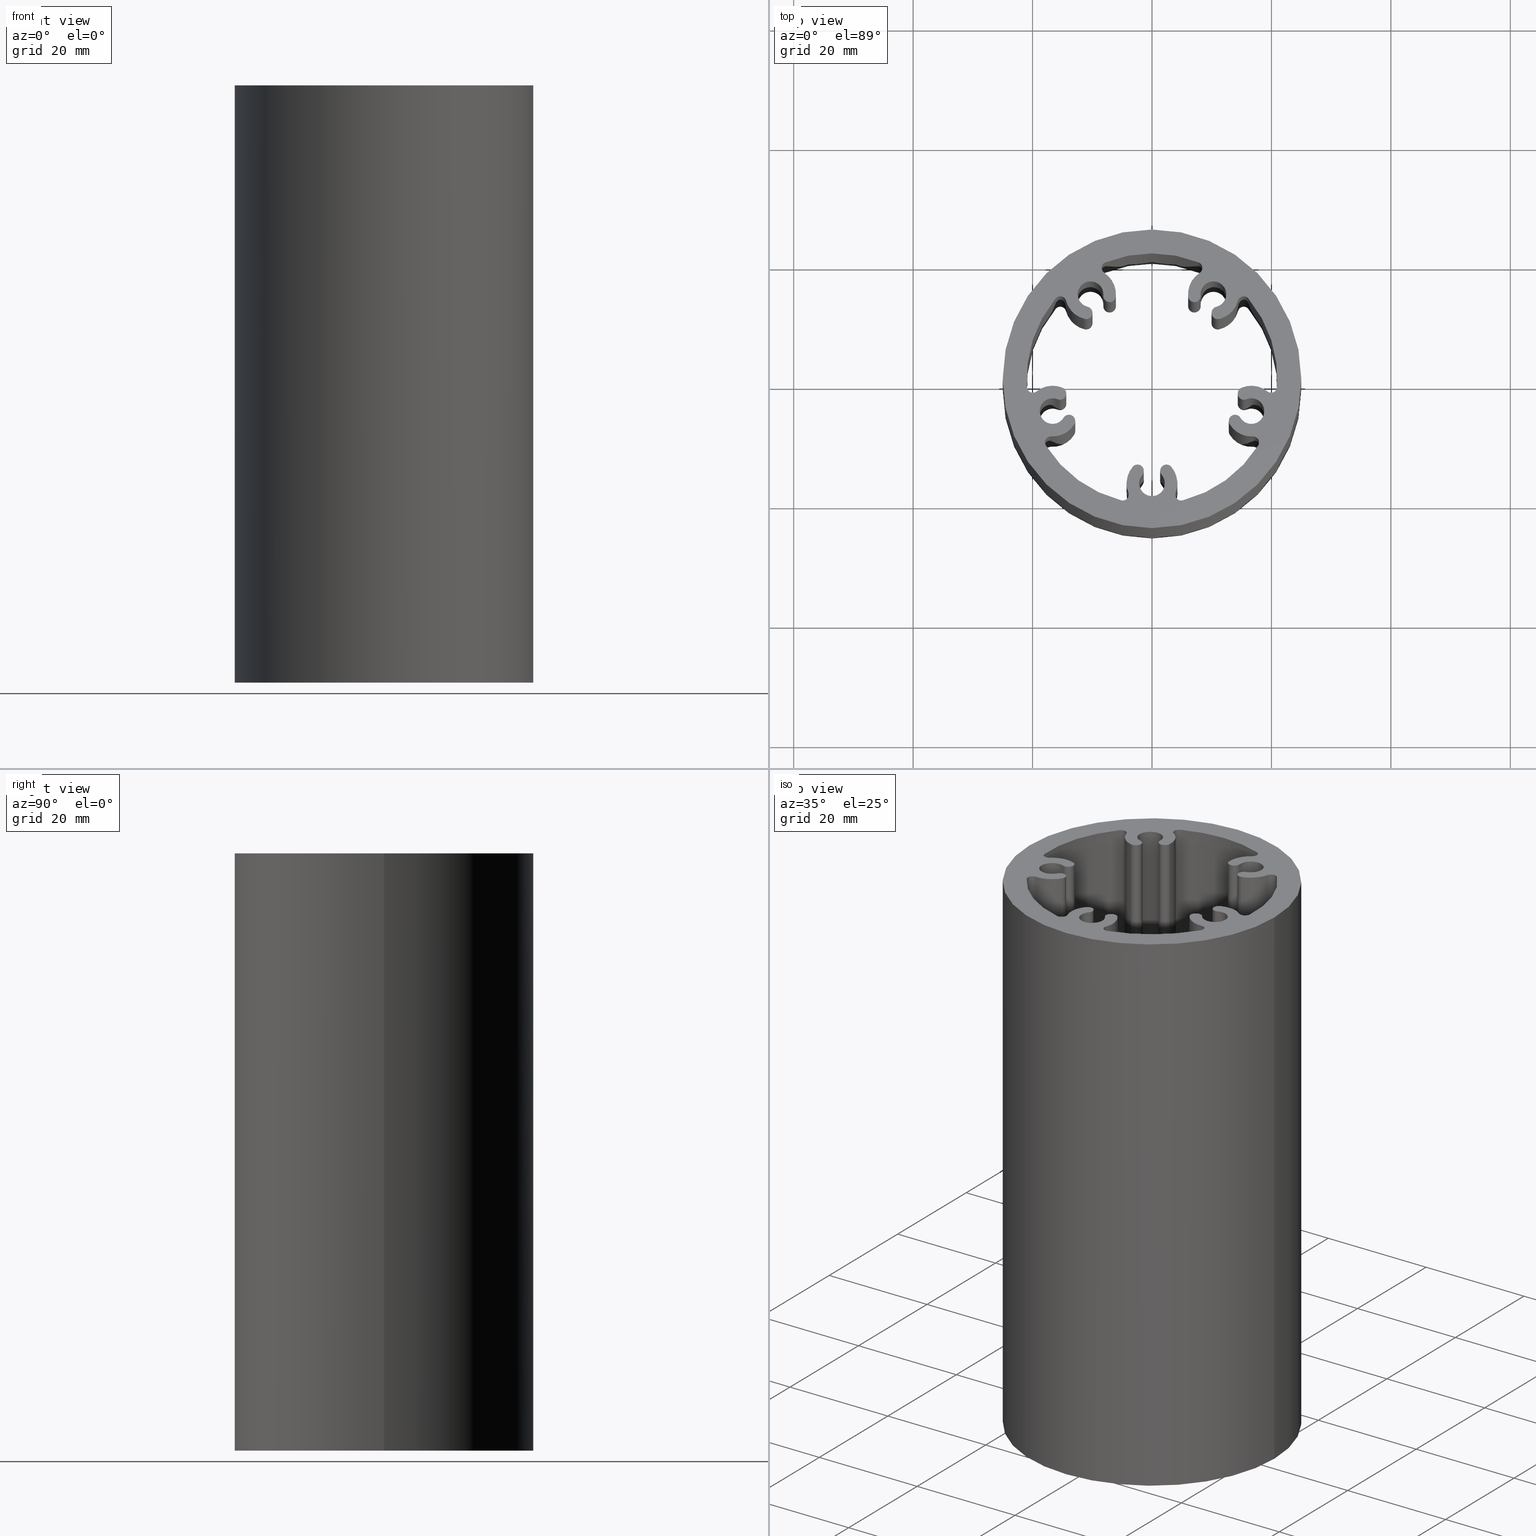
[diagram: canonical four-view strip — front | top / right | iso, engineering-drawing reading convention]
A machine part, canonical four-view strip (front | top / right | iso — engineering-drawing reading convention). The complete STEP part file that produces these views, byte-faithful:
ISO-10303-21;
HEADER;
/* Generated by software containing ST-Developer
 * from STEP Tools, Inc. (www.steptools.com) 
 */

FILE_DESCRIPTION(
/* description */ ('PROF. D=50 SP=4 C/5 FORI INT=35 D=4,3'),
/* implementation_level */ '2;1');

FILE_NAME(
/* name */ 
'Q:\\Catalogo\\1_Profili Dierre\\Per Download Web\\Complementari\\BPRD
D0000012.stp',
/* time_stamp */ '2017-07-14T17:18:55+02:00',
/* author */ ('fzagni'),
/* organization */ (''),
/* preprocessor_version */ 'ST-DEVELOPER v16.1',
/* originating_system */ 'Autodesk Inventor 2016',
/* authorisation */ '');

FILE_SCHEMA (('AUTOMOTIVE_DESIGN { 1 0 10303 214 3 1 1 }'));
ENDSEC;

DATA;
#10=MECHANICAL_DESIGN_GEOMETRIC_PRESENTATION_REPRESENTATION('',(#13),#1473);
#11=SHAPE_REPRESENTATION_RELATIONSHIP('SRR','None',#1482,#12);
#12=ADVANCED_BREP_SHAPE_REPRESENTATION('',(#14),#1472);
#13=STYLED_ITEM('',(#1491),#14);
#14=MANIFOLD_SOLID_BREP('Solido1',#803);
#15=FACE_BOUND('',#104,.T.);
#16=FACE_BOUND('',#106,.T.);
#17=FACE_BOUND('',#108,.T.);
#18=PLANE('',#925);
#19=PLANE('',#929);
#20=FACE_OUTER_BOUND('',#63,.T.);
#21=FACE_OUTER_BOUND('',#64,.T.);
#22=FACE_OUTER_BOUND('',#65,.T.);
#23=FACE_OUTER_BOUND('',#66,.T.);
#24=FACE_OUTER_BOUND('',#67,.T.);
#25=FACE_OUTER_BOUND('',#68,.T.);
#26=FACE_OUTER_BOUND('',#69,.T.);
#27=FACE_OUTER_BOUND('',#70,.T.);
#28=FACE_OUTER_BOUND('',#71,.T.);
#29=FACE_OUTER_BOUND('',#72,.T.);
#30=FACE_OUTER_BOUND('',#73,.T.);
#31=FACE_OUTER_BOUND('',#74,.T.);
#32=FACE_OUTER_BOUND('',#75,.T.);
#33=FACE_OUTER_BOUND('',#76,.T.);
#34=FACE_OUTER_BOUND('',#77,.T.);
#35=FACE_OUTER_BOUND('',#78,.T.);
#36=FACE_OUTER_BOUND('',#79,.T.);
#37=FACE_OUTER_BOUND('',#80,.T.);
#38=FACE_OUTER_BOUND('',#81,.T.);
#39=FACE_OUTER_BOUND('',#82,.T.);
#40=FACE_OUTER_BOUND('',#83,.T.);
#41=FACE_OUTER_BOUND('',#84,.T.);
#42=FACE_OUTER_BOUND('',#85,.T.);
#43=FACE_OUTER_BOUND('',#86,.T.);
#44=FACE_OUTER_BOUND('',#87,.T.);
#45=FACE_OUTER_BOUND('',#88,.T.);
#46=FACE_OUTER_BOUND('',#89,.T.);
#47=FACE_OUTER_BOUND('',#90,.T.);
#48=FACE_OUTER_BOUND('',#91,.T.);
#49=FACE_OUTER_BOUND('',#92,.T.);
#50=FACE_OUTER_BOUND('',#93,.T.);
#51=FACE_OUTER_BOUND('',#94,.T.);
#52=FACE_OUTER_BOUND('',#95,.T.);
#53=FACE_OUTER_BOUND('',#96,.T.);
#54=FACE_OUTER_BOUND('',#97,.T.);
#55=FACE_OUTER_BOUND('',#98,.T.);
#56=FACE_OUTER_BOUND('',#99,.T.);
#57=FACE_OUTER_BOUND('',#100,.T.);
#58=FACE_OUTER_BOUND('',#101,.T.);
#59=FACE_OUTER_BOUND('',#102,.T.);
#60=FACE_OUTER_BOUND('',#103,.T.);
#61=FACE_OUTER_BOUND('',#105,.T.);
#62=FACE_OUTER_BOUND('',#107,.T.);
#63=EDGE_LOOP('',(#475,#476,#477,#478));
#64=EDGE_LOOP('',(#479,#480,#481,#482));
#65=EDGE_LOOP('',(#483,#484,#485,#486));
#66=EDGE_LOOP('',(#487,#488,#489,#490));
#67=EDGE_LOOP('',(#491,#492,#493,#494));
#68=EDGE_LOOP('',(#495,#496,#497,#498));
#69=EDGE_LOOP('',(#499,#500,#501,#502));
#70=EDGE_LOOP('',(#503,#504,#505,#506));
#71=EDGE_LOOP('',(#507,#508,#509,#510));
#72=EDGE_LOOP('',(#511,#512,#513,#514));
#73=EDGE_LOOP('',(#515,#516,#517,#518));
#74=EDGE_LOOP('',(#519,#520,#521,#522));
#75=EDGE_LOOP('',(#523,#524,#525,#526));
#76=EDGE_LOOP('',(#527,#528,#529,#530));
#77=EDGE_LOOP('',(#531,#532,#533,#534));
#78=EDGE_LOOP('',(#535,#536,#537,#538));
#79=EDGE_LOOP('',(#539,#540,#541,#542));
#80=EDGE_LOOP('',(#543,#544,#545,#546));
#81=EDGE_LOOP('',(#547,#548,#549,#550));
#82=EDGE_LOOP('',(#551,#552,#553,#554));
#83=EDGE_LOOP('',(#555,#556,#557,#558));
#84=EDGE_LOOP('',(#559,#560,#561,#562));
#85=EDGE_LOOP('',(#563,#564,#565,#566));
#86=EDGE_LOOP('',(#567,#568,#569,#570));
#87=EDGE_LOOP('',(#571,#572,#573,#574));
#88=EDGE_LOOP('',(#575,#576,#577,#578));
#89=EDGE_LOOP('',(#579,#580,#581,#582));
#90=EDGE_LOOP('',(#583,#584,#585,#586));
#91=EDGE_LOOP('',(#587,#588,#589,#590));
#92=EDGE_LOOP('',(#591,#592,#593,#594));
#93=EDGE_LOOP('',(#595,#596,#597,#598));
#94=EDGE_LOOP('',(#599,#600,#601,#602));
#95=EDGE_LOOP('',(#603,#604,#605,#606));
#96=EDGE_LOOP('',(#607,#608,#609,#610));
#97=EDGE_LOOP('',(#611,#612,#613,#614));
#98=EDGE_LOOP('',(#615,#616,#617,#618));
#99=EDGE_LOOP('',(#619,#620,#621,#622));
#100=EDGE_LOOP('',(#623,#624,#625,#626));
#101=EDGE_LOOP('',(#627,#628,#629,#630));
#102=EDGE_LOOP('',(#631,#632,#633,#634));
#103=EDGE_LOOP('',(#635));
#104=EDGE_LOOP('',(#636,#637,#638,#639,#640,#641,#642,#643,#644,#645,#646,
#647,#648,#649,#650,#651,#652,#653,#654,#655,#656,#657,#658,#659,#660,#661,
#662,#663,#664,#665,#666,#667,#668,#669,#670,#671,#672,#673,#674,#675));
#105=EDGE_LOOP('',(#676));
#106=EDGE_LOOP('',(#677));
#107=EDGE_LOOP('',(#678));
#108=EDGE_LOOP('',(#679,#680,#681,#682,#683,#684,#685,#686,#687,#688,#689,
#690,#691,#692,#693,#694,#695,#696,#697,#698,#699,#700,#701,#702,#703,#704,
#705,#706,#707,#708,#709,#710,#711,#712,#713,#714,#715,#716,#717,#718));
#109=CIRCLE('',#806,4.250000000017);
#110=CIRCLE('',#807,4.250000000017);
#111=CIRCLE('',#809,1.00000000005786);
#112=CIRCLE('',#810,1.00000000005786);
#113=CIRCLE('',#812,20.9999999999894);
#114=CIRCLE('',#813,20.9999999999894);
#115=CIRCLE('',#815,1.00000000005786);
#116=CIRCLE('',#816,1.00000000005786);
#117=CIRCLE('',#818,4.25000000001703);
#118=CIRCLE('',#819,4.25000000001703);
#119=CIRCLE('',#821,1.05000000000311);
#120=CIRCLE('',#822,1.05000000000311);
#121=CIRCLE('',#824,2.15000000001075);
#122=CIRCLE('',#825,2.15000000001075);
#123=CIRCLE('',#827,1.05000000000311);
#124=CIRCLE('',#828,1.05000000000311);
#125=CIRCLE('',#830,4.250000000017);
#126=CIRCLE('',#831,4.250000000017);
#127=CIRCLE('',#833,1.00000000005786);
#128=CIRCLE('',#834,1.00000000005786);
#129=CIRCLE('',#836,20.9999999999894);
#130=CIRCLE('',#837,20.9999999999894);
#131=CIRCLE('',#839,1.00000000005786);
#132=CIRCLE('',#840,1.00000000005786);
#133=CIRCLE('',#842,4.25000000001702);
#134=CIRCLE('',#843,4.25000000001702);
#135=CIRCLE('',#845,1.05000000000311);
#136=CIRCLE('',#846,1.05000000000311);
#137=CIRCLE('',#848,2.15000000001075);
#138=CIRCLE('',#849,2.15000000001075);
#139=CIRCLE('',#851,1.05000000000311);
#140=CIRCLE('',#852,1.05000000000311);
#141=CIRCLE('',#854,4.250000000017);
#142=CIRCLE('',#855,4.250000000017);
#143=CIRCLE('',#857,1.00000000005786);
#144=CIRCLE('',#858,1.00000000005786);
#145=CIRCLE('',#860,20.9999999999894);
#146=CIRCLE('',#861,20.9999999999894);
#147=CIRCLE('',#863,1.00000000005786);
#148=CIRCLE('',#864,1.00000000005786);
#149=CIRCLE('',#866,4.250000000017);
#150=CIRCLE('',#867,4.250000000017);
#151=CIRCLE('',#869,1.05000000000311);
#152=CIRCLE('',#870,1.05000000000311);
#153=CIRCLE('',#872,2.15000000001075);
#154=CIRCLE('',#873,2.15000000001075);
#155=CIRCLE('',#875,1.05000000000311);
#156=CIRCLE('',#876,1.05000000000311);
#157=CIRCLE('',#878,4.250000000017);
#158=CIRCLE('',#879,4.250000000017);
#159=CIRCLE('',#881,1.00000000005786);
#160=CIRCLE('',#882,1.00000000005786);
#161=CIRCLE('',#884,20.9999999999894);
#162=CIRCLE('',#885,20.9999999999894);
#163=CIRCLE('',#887,1.00000000005786);
#164=CIRCLE('',#888,1.00000000005786);
#165=CIRCLE('',#890,4.250000000017);
#166=CIRCLE('',#891,4.250000000017);
#167=CIRCLE('',#893,1.05000000000311);
#168=CIRCLE('',#894,1.05000000000311);
#169=CIRCLE('',#896,2.15000000001075);
#170=CIRCLE('',#897,2.15000000001075);
#171=CIRCLE('',#899,1.05000000000311);
#172=CIRCLE('',#900,1.05000000000311);
#173=CIRCLE('',#902,4.250000000017);
#174=CIRCLE('',#903,4.250000000017);
#175=CIRCLE('',#905,1.00000000005786);
#176=CIRCLE('',#906,1.00000000005786);
#177=CIRCLE('',#908,20.9999999999894);
#178=CIRCLE('',#909,20.9999999999894);
#179=CIRCLE('',#911,1.00000000005786);
#180=CIRCLE('',#912,1.00000000005786);
#181=CIRCLE('',#914,4.250000000017);
#182=CIRCLE('',#915,4.250000000017);
#183=CIRCLE('',#917,1.05000000000311);
#184=CIRCLE('',#918,1.05000000000311);
#185=CIRCLE('',#920,2.15000000001075);
#186=CIRCLE('',#921,2.15000000001075);
#187=CIRCLE('',#923,1.05000000000311);
#188=CIRCLE('',#924,1.05000000000311);
#189=CIRCLE('',#926,25.);
#190=CIRCLE('',#928,25.);
#191=LINE('',#1226,#231);
#192=LINE('',#1230,#232);
#193=LINE('',#1236,#233);
#194=LINE('',#1242,#234);
#195=LINE('',#1248,#235);
#196=LINE('',#1254,#236);
#197=LINE('',#1260,#237);
#198=LINE('',#1266,#238);
#199=LINE('',#1272,#239);
#200=LINE('',#1278,#240);
#201=LINE('',#1284,#241);
#202=LINE('',#1290,#242);
#203=LINE('',#1296,#243);
#204=LINE('',#1302,#244);
#205=LINE('',#1308,#245);
#206=LINE('',#1314,#246);
#207=LINE('',#1320,#247);
#208=LINE('',#1326,#248);
#209=LINE('',#1332,#249);
#210=LINE('',#1338,#250);
#211=LINE('',#1344,#251);
#212=LINE('',#1350,#252);
#213=LINE('',#1356,#253);
#214=LINE('',#1362,#254);
#215=LINE('',#1368,#255);
#216=LINE('',#1374,#256);
#217=LINE('',#1380,#257);
#218=LINE('',#1386,#258);
#219=LINE('',#1392,#259);
#220=LINE('',#1398,#260);
#221=LINE('',#1404,#261);
#222=LINE('',#1410,#262);
#223=LINE('',#1416,#263);
#224=LINE('',#1422,#264);
#225=LINE('',#1428,#265);
#226=LINE('',#1434,#266);
#227=LINE('',#1440,#267);
#228=LINE('',#1446,#268);
#229=LINE('',#1452,#269);
#230=LINE('',#1458,#270);
#231=VECTOR('',#934,100.);
#232=VECTOR('',#937,100.);
#233=VECTOR('',#944,100.);
#234=VECTOR('',#951,100.);
#235=VECTOR('',#958,100.);
#236=VECTOR('',#965,100.);
#237=VECTOR('',#972,100.);
#238=VECTOR('',#979,100.);
#239=VECTOR('',#986,100.);
#240=VECTOR('',#993,100.);
#241=VECTOR('',#1000,100.);
#242=VECTOR('',#1007,100.);
#243=VECTOR('',#1014,100.);
#244=VECTOR('',#1021,100.);
#245=VECTOR('',#1028,100.);
#246=VECTOR('',#1035,100.);
#247=VECTOR('',#1042,100.);
#248=VECTOR('',#1049,100.);
#249=VECTOR('',#1056,100.);
#250=VECTOR('',#1063,100.);
#251=VECTOR('',#1070,100.);
#252=VECTOR('',#1077,100.);
#253=VECTOR('',#1084,100.);
#254=VECTOR('',#1091,100.);
#255=VECTOR('',#1098,100.);
#256=VECTOR('',#1105,100.);
#257=VECTOR('',#1112,100.);
#258=VECTOR('',#1119,100.);
#259=VECTOR('',#1126,100.);
#260=VECTOR('',#1133,100.);
#261=VECTOR('',#1140,100.);
#262=VECTOR('',#1147,100.);
#263=VECTOR('',#1154,100.);
#264=VECTOR('',#1161,100.);
#265=VECTOR('',#1168,100.);
#266=VECTOR('',#1175,100.);
#267=VECTOR('',#1182,100.);
#268=VECTOR('',#1189,100.);
#269=VECTOR('',#1196,100.);
#270=VECTOR('',#1203,100.);
#271=VERTEX_POINT('',#1224);
#272=VERTEX_POINT('',#1225);
#273=VERTEX_POINT('',#1227);
#274=VERTEX_POINT('',#1229);
#275=VERTEX_POINT('',#1233);
#276=VERTEX_POINT('',#1235);
#277=VERTEX_POINT('',#1239);
#278=VERTEX_POINT('',#1241);
#279=VERTEX_POINT('',#1245);
#280=VERTEX_POINT('',#1247);
#281=VERTEX_POINT('',#1251);
#282=VERTEX_POINT('',#1253);
#283=VERTEX_POINT('',#1257);
#284=VERTEX_POINT('',#1259);
#285=VERTEX_POINT('',#1263);
#286=VERTEX_POINT('',#1265);
#287=VERTEX_POINT('',#1269);
#288=VERTEX_POINT('',#1271);
#289=VERTEX_POINT('',#1275);
#290=VERTEX_POINT('',#1277);
#291=VERTEX_POINT('',#1281);
#292=VERTEX_POINT('',#1283);
#293=VERTEX_POINT('',#1287);
#294=VERTEX_POINT('',#1289);
#295=VERTEX_POINT('',#1293);
#296=VERTEX_POINT('',#1295);
#297=VERTEX_POINT('',#1299);
#298=VERTEX_POINT('',#1301);
#299=VERTEX_POINT('',#1305);
#300=VERTEX_POINT('',#1307);
#301=VERTEX_POINT('',#1311);
#302=VERTEX_POINT('',#1313);
#303=VERTEX_POINT('',#1317);
#304=VERTEX_POINT('',#1319);
#305=VERTEX_POINT('',#1323);
#306=VERTEX_POINT('',#1325);
#307=VERTEX_POINT('',#1329);
#308=VERTEX_POINT('',#1331);
#309=VERTEX_POINT('',#1335);
#310=VERTEX_POINT('',#1337);
#311=VERTEX_POINT('',#1341);
#312=VERTEX_POINT('',#1343);
#313=VERTEX_POINT('',#1347);
#314=VERTEX_POINT('',#1349);
#315=VERTEX_POINT('',#1353);
#316=VERTEX_POINT('',#1355);
#317=VERTEX_POINT('',#1359);
#318=VERTEX_POINT('',#1361);
#319=VERTEX_POINT('',#1365);
#320=VERTEX_POINT('',#1367);
#321=VERTEX_POINT('',#1371);
#322=VERTEX_POINT('',#1373);
#323=VERTEX_POINT('',#1377);
#324=VERTEX_POINT('',#1379);
#325=VERTEX_POINT('',#1383);
#326=VERTEX_POINT('',#1385);
#327=VERTEX_POINT('',#1389);
#328=VERTEX_POINT('',#1391);
#329=VERTEX_POINT('',#1395);
#330=VERTEX_POINT('',#1397);
#331=VERTEX_POINT('',#1401);
#332=VERTEX_POINT('',#1403);
#333=VERTEX_POINT('',#1407);
#334=VERTEX_POINT('',#1409);
#335=VERTEX_POINT('',#1413);
#336=VERTEX_POINT('',#1415);
#337=VERTEX_POINT('',#1419);
#338=VERTEX_POINT('',#1421);
#339=VERTEX_POINT('',#1425);
#340=VERTEX_POINT('',#1427);
#341=VERTEX_POINT('',#1431);
#342=VERTEX_POINT('',#1433);
#343=VERTEX_POINT('',#1437);
#344=VERTEX_POINT('',#1439);
#345=VERTEX_POINT('',#1443);
#346=VERTEX_POINT('',#1445);
#347=VERTEX_POINT('',#1449);
#348=VERTEX_POINT('',#1451);
#349=VERTEX_POINT('',#1455);
#350=VERTEX_POINT('',#1457);
#351=VERTEX_POINT('',#1464);
#352=VERTEX_POINT('',#1467);
#353=EDGE_CURVE('',#271,#272,#191,.T.);
#354=EDGE_CURVE('',#273,#272,#109,.T.);
#355=EDGE_CURVE('',#274,#273,#192,.T.);
#356=EDGE_CURVE('',#271,#274,#110,.T.);
#357=EDGE_CURVE('',#275,#273,#111,.T.);
#358=EDGE_CURVE('',#276,#275,#193,.T.);
#359=EDGE_CURVE('',#274,#276,#112,.T.);
#360=EDGE_CURVE('',#277,#275,#113,.T.);
#361=EDGE_CURVE('',#278,#277,#194,.T.);
#362=EDGE_CURVE('',#276,#278,#114,.T.);
#363=EDGE_CURVE('',#279,#277,#115,.T.);
#364=EDGE_CURVE('',#280,#279,#195,.T.);
#365=EDGE_CURVE('',#278,#280,#116,.T.);
#366=EDGE_CURVE('',#281,#279,#117,.T.);
#367=EDGE_CURVE('',#282,#281,#196,.T.);
#368=EDGE_CURVE('',#280,#282,#118,.T.);
#369=EDGE_CURVE('',#283,#281,#119,.T.);
#370=EDGE_CURVE('',#284,#283,#197,.T.);
#371=EDGE_CURVE('',#282,#284,#120,.T.);
#372=EDGE_CURVE('',#285,#283,#121,.T.);
#373=EDGE_CURVE('',#286,#285,#198,.T.);
#374=EDGE_CURVE('',#284,#286,#122,.T.);
#375=EDGE_CURVE('',#287,#285,#123,.T.);
#376=EDGE_CURVE('',#288,#287,#199,.T.);
#377=EDGE_CURVE('',#286,#288,#124,.T.);
#378=EDGE_CURVE('',#289,#287,#125,.T.);
#379=EDGE_CURVE('',#290,#289,#200,.T.);
#380=EDGE_CURVE('',#288,#290,#126,.T.);
#381=EDGE_CURVE('',#291,#289,#127,.T.);
#382=EDGE_CURVE('',#292,#291,#201,.T.);
#383=EDGE_CURVE('',#290,#292,#128,.T.);
#384=EDGE_CURVE('',#293,#291,#129,.T.);
#385=EDGE_CURVE('',#294,#293,#202,.T.);
#386=EDGE_CURVE('',#292,#294,#130,.T.);
#387=EDGE_CURVE('',#295,#293,#131,.T.);
#388=EDGE_CURVE('',#296,#295,#203,.T.);
#389=EDGE_CURVE('',#294,#296,#132,.T.);
#390=EDGE_CURVE('',#297,#295,#133,.T.);
#391=EDGE_CURVE('',#298,#297,#204,.T.);
#392=EDGE_CURVE('',#296,#298,#134,.T.);
#393=EDGE_CURVE('',#299,#297,#135,.T.);
#394=EDGE_CURVE('',#300,#299,#205,.T.);
#395=EDGE_CURVE('',#298,#300,#136,.T.);
#396=EDGE_CURVE('',#301,#299,#137,.T.);
#397=EDGE_CURVE('',#302,#301,#206,.T.);
#398=EDGE_CURVE('',#300,#302,#138,.T.);
#399=EDGE_CURVE('',#303,#301,#139,.T.);
#400=EDGE_CURVE('',#304,#303,#207,.T.);
#401=EDGE_CURVE('',#302,#304,#140,.T.);
#402=EDGE_CURVE('',#305,#303,#141,.T.);
#403=EDGE_CURVE('',#306,#305,#208,.T.);
#404=EDGE_CURVE('',#304,#306,#142,.T.);
#405=EDGE_CURVE('',#307,#305,#143,.T.);
#406=EDGE_CURVE('',#308,#307,#209,.T.);
#407=EDGE_CURVE('',#306,#308,#144,.T.);
#408=EDGE_CURVE('',#309,#307,#145,.T.);
#409=EDGE_CURVE('',#310,#309,#210,.T.);
#410=EDGE_CURVE('',#308,#310,#146,.T.);
#411=EDGE_CURVE('',#311,#309,#147,.T.);
#412=EDGE_CURVE('',#312,#311,#211,.T.);
#413=EDGE_CURVE('',#310,#312,#148,.T.);
#414=EDGE_CURVE('',#313,#311,#149,.T.);
#415=EDGE_CURVE('',#314,#313,#212,.T.);
#416=EDGE_CURVE('',#312,#314,#150,.T.);
#417=EDGE_CURVE('',#315,#313,#151,.T.);
#418=EDGE_CURVE('',#316,#315,#213,.T.);
#419=EDGE_CURVE('',#314,#316,#152,.T.);
#420=EDGE_CURVE('',#317,#315,#153,.T.);
#421=EDGE_CURVE('',#318,#317,#214,.T.);
#422=EDGE_CURVE('',#316,#318,#154,.T.);
#423=EDGE_CURVE('',#319,#317,#155,.T.);
#424=EDGE_CURVE('',#320,#319,#215,.T.);
#425=EDGE_CURVE('',#318,#320,#156,.T.);
#426=EDGE_CURVE('',#321,#319,#157,.T.);
#427=EDGE_CURVE('',#322,#321,#216,.T.);
#428=EDGE_CURVE('',#320,#322,#158,.T.);
#429=EDGE_CURVE('',#323,#321,#159,.T.);
#430=EDGE_CURVE('',#324,#323,#217,.T.);
#431=EDGE_CURVE('',#322,#324,#160,.T.);
#432=EDGE_CURVE('',#325,#323,#161,.T.);
#433=EDGE_CURVE('',#326,#325,#218,.T.);
#434=EDGE_CURVE('',#324,#326,#162,.T.);
#435=EDGE_CURVE('',#327,#325,#163,.T.);
#436=EDGE_CURVE('',#328,#327,#219,.T.);
#437=EDGE_CURVE('',#326,#328,#164,.T.);
#438=EDGE_CURVE('',#329,#327,#165,.T.);
#439=EDGE_CURVE('',#330,#329,#220,.T.);
#440=EDGE_CURVE('',#328,#330,#166,.T.);
#441=EDGE_CURVE('',#331,#329,#167,.T.);
#442=EDGE_CURVE('',#332,#331,#221,.T.);
#443=EDGE_CURVE('',#330,#332,#168,.T.);
#444=EDGE_CURVE('',#333,#331,#169,.T.);
#445=EDGE_CURVE('',#334,#333,#222,.T.);
#446=EDGE_CURVE('',#332,#334,#170,.T.);
#447=EDGE_CURVE('',#335,#333,#171,.T.);
#448=EDGE_CURVE('',#336,#335,#223,.T.);
#449=EDGE_CURVE('',#334,#336,#172,.T.);
#450=EDGE_CURVE('',#337,#335,#173,.T.);
#451=EDGE_CURVE('',#338,#337,#224,.T.);
#452=EDGE_CURVE('',#336,#338,#174,.T.);
#453=EDGE_CURVE('',#339,#337,#175,.T.);
#454=EDGE_CURVE('',#340,#339,#225,.T.);
#455=EDGE_CURVE('',#338,#340,#176,.T.);
#456=EDGE_CURVE('',#341,#339,#177,.T.);
#457=EDGE_CURVE('',#342,#341,#226,.T.);
#458=EDGE_CURVE('',#340,#342,#178,.T.);
#459=EDGE_CURVE('',#343,#341,#179,.T.);
#460=EDGE_CURVE('',#344,#343,#227,.T.);
#461=EDGE_CURVE('',#342,#344,#180,.T.);
#462=EDGE_CURVE('',#345,#343,#181,.T.);
#463=EDGE_CURVE('',#346,#345,#228,.T.);
#464=EDGE_CURVE('',#344,#346,#182,.T.);
#465=EDGE_CURVE('',#347,#345,#183,.T.);
#466=EDGE_CURVE('',#348,#347,#229,.T.);
#467=EDGE_CURVE('',#346,#348,#184,.T.);
#468=EDGE_CURVE('',#349,#347,#185,.T.);
#469=EDGE_CURVE('',#349,#350,#230,.T.);
#470=EDGE_CURVE('',#348,#350,#186,.T.);
#471=EDGE_CURVE('',#272,#349,#187,.T.);
#472=EDGE_CURVE('',#350,#271,#188,.T.);
#473=EDGE_CURVE('',#351,#351,#189,.T.);
#474=EDGE_CURVE('',#352,#352,#190,.T.);
#475=ORIENTED_EDGE('',*,*,#353,.T.);
#476=ORIENTED_EDGE('',*,*,#354,.F.);
#477=ORIENTED_EDGE('',*,*,#355,.F.);
#478=ORIENTED_EDGE('',*,*,#356,.F.);
#479=ORIENTED_EDGE('',*,*,#355,.T.);
#480=ORIENTED_EDGE('',*,*,#357,.F.);
#481=ORIENTED_EDGE('',*,*,#358,.F.);
#482=ORIENTED_EDGE('',*,*,#359,.F.);
#483=ORIENTED_EDGE('',*,*,#358,.T.);
#484=ORIENTED_EDGE('',*,*,#360,.F.);
#485=ORIENTED_EDGE('',*,*,#361,.F.);
#486=ORIENTED_EDGE('',*,*,#362,.F.);
#487=ORIENTED_EDGE('',*,*,#361,.T.);
#488=ORIENTED_EDGE('',*,*,#363,.F.);
#489=ORIENTED_EDGE('',*,*,#364,.F.);
#490=ORIENTED_EDGE('',*,*,#365,.F.);
#491=ORIENTED_EDGE('',*,*,#364,.T.);
#492=ORIENTED_EDGE('',*,*,#366,.F.);
#493=ORIENTED_EDGE('',*,*,#367,.F.);
#494=ORIENTED_EDGE('',*,*,#368,.F.);
#495=ORIENTED_EDGE('',*,*,#367,.T.);
#496=ORIENTED_EDGE('',*,*,#369,.F.);
#497=ORIENTED_EDGE('',*,*,#370,.F.);
#498=ORIENTED_EDGE('',*,*,#371,.F.);
#499=ORIENTED_EDGE('',*,*,#370,.T.);
#500=ORIENTED_EDGE('',*,*,#372,.F.);
#501=ORIENTED_EDGE('',*,*,#373,.F.);
#502=ORIENTED_EDGE('',*,*,#374,.F.);
#503=ORIENTED_EDGE('',*,*,#373,.T.);
#504=ORIENTED_EDGE('',*,*,#375,.F.);
#505=ORIENTED_EDGE('',*,*,#376,.F.);
#506=ORIENTED_EDGE('',*,*,#377,.F.);
#507=ORIENTED_EDGE('',*,*,#376,.T.);
#508=ORIENTED_EDGE('',*,*,#378,.F.);
#509=ORIENTED_EDGE('',*,*,#379,.F.);
#510=ORIENTED_EDGE('',*,*,#380,.F.);
#511=ORIENTED_EDGE('',*,*,#379,.T.);
#512=ORIENTED_EDGE('',*,*,#381,.F.);
#513=ORIENTED_EDGE('',*,*,#382,.F.);
#514=ORIENTED_EDGE('',*,*,#383,.F.);
#515=ORIENTED_EDGE('',*,*,#382,.T.);
#516=ORIENTED_EDGE('',*,*,#384,.F.);
#517=ORIENTED_EDGE('',*,*,#385,.F.);
#518=ORIENTED_EDGE('',*,*,#386,.F.);
#519=ORIENTED_EDGE('',*,*,#385,.T.);
#520=ORIENTED_EDGE('',*,*,#387,.F.);
#521=ORIENTED_EDGE('',*,*,#388,.F.);
#522=ORIENTED_EDGE('',*,*,#389,.F.);
#523=ORIENTED_EDGE('',*,*,#388,.T.);
#524=ORIENTED_EDGE('',*,*,#390,.F.);
#525=ORIENTED_EDGE('',*,*,#391,.F.);
#526=ORIENTED_EDGE('',*,*,#392,.F.);
#527=ORIENTED_EDGE('',*,*,#391,.T.);
#528=ORIENTED_EDGE('',*,*,#393,.F.);
#529=ORIENTED_EDGE('',*,*,#394,.F.);
#530=ORIENTED_EDGE('',*,*,#395,.F.);
#531=ORIENTED_EDGE('',*,*,#394,.T.);
#532=ORIENTED_EDGE('',*,*,#396,.F.);
#533=ORIENTED_EDGE('',*,*,#397,.F.);
#534=ORIENTED_EDGE('',*,*,#398,.F.);
#535=ORIENTED_EDGE('',*,*,#397,.T.);
#536=ORIENTED_EDGE('',*,*,#399,.F.);
#537=ORIENTED_EDGE('',*,*,#400,.F.);
#538=ORIENTED_EDGE('',*,*,#401,.F.);
#539=ORIENTED_EDGE('',*,*,#400,.T.);
#540=ORIENTED_EDGE('',*,*,#402,.F.);
#541=ORIENTED_EDGE('',*,*,#403,.F.);
#542=ORIENTED_EDGE('',*,*,#404,.F.);
#543=ORIENTED_EDGE('',*,*,#403,.T.);
#544=ORIENTED_EDGE('',*,*,#405,.F.);
#545=ORIENTED_EDGE('',*,*,#406,.F.);
#546=ORIENTED_EDGE('',*,*,#407,.F.);
#547=ORIENTED_EDGE('',*,*,#406,.T.);
#548=ORIENTED_EDGE('',*,*,#408,.F.);
#549=ORIENTED_EDGE('',*,*,#409,.F.);
#550=ORIENTED_EDGE('',*,*,#410,.F.);
#551=ORIENTED_EDGE('',*,*,#409,.T.);
#552=ORIENTED_EDGE('',*,*,#411,.F.);
#553=ORIENTED_EDGE('',*,*,#412,.F.);
#554=ORIENTED_EDGE('',*,*,#413,.F.);
#555=ORIENTED_EDGE('',*,*,#412,.T.);
#556=ORIENTED_EDGE('',*,*,#414,.F.);
#557=ORIENTED_EDGE('',*,*,#415,.F.);
#558=ORIENTED_EDGE('',*,*,#416,.F.);
#559=ORIENTED_EDGE('',*,*,#415,.T.);
#560=ORIENTED_EDGE('',*,*,#417,.F.);
#561=ORIENTED_EDGE('',*,*,#418,.F.);
#562=ORIENTED_EDGE('',*,*,#419,.F.);
#563=ORIENTED_EDGE('',*,*,#418,.T.);
#564=ORIENTED_EDGE('',*,*,#420,.F.);
#565=ORIENTED_EDGE('',*,*,#421,.F.);
#566=ORIENTED_EDGE('',*,*,#422,.F.);
#567=ORIENTED_EDGE('',*,*,#421,.T.);
#568=ORIENTED_EDGE('',*,*,#423,.F.);
#569=ORIENTED_EDGE('',*,*,#424,.F.);
#570=ORIENTED_EDGE('',*,*,#425,.F.);
#571=ORIENTED_EDGE('',*,*,#424,.T.);
#572=ORIENTED_EDGE('',*,*,#426,.F.);
#573=ORIENTED_EDGE('',*,*,#427,.F.);
#574=ORIENTED_EDGE('',*,*,#428,.F.);
#575=ORIENTED_EDGE('',*,*,#427,.T.);
#576=ORIENTED_EDGE('',*,*,#429,.F.);
#577=ORIENTED_EDGE('',*,*,#430,.F.);
#578=ORIENTED_EDGE('',*,*,#431,.F.);
#579=ORIENTED_EDGE('',*,*,#430,.T.);
#580=ORIENTED_EDGE('',*,*,#432,.F.);
#581=ORIENTED_EDGE('',*,*,#433,.F.);
#582=ORIENTED_EDGE('',*,*,#434,.F.);
#583=ORIENTED_EDGE('',*,*,#433,.T.);
#584=ORIENTED_EDGE('',*,*,#435,.F.);
#585=ORIENTED_EDGE('',*,*,#436,.F.);
#586=ORIENTED_EDGE('',*,*,#437,.F.);
#587=ORIENTED_EDGE('',*,*,#436,.T.);
#588=ORIENTED_EDGE('',*,*,#438,.F.);
#589=ORIENTED_EDGE('',*,*,#439,.F.);
#590=ORIENTED_EDGE('',*,*,#440,.F.);
#591=ORIENTED_EDGE('',*,*,#439,.T.);
#592=ORIENTED_EDGE('',*,*,#441,.F.);
#593=ORIENTED_EDGE('',*,*,#442,.F.);
#594=ORIENTED_EDGE('',*,*,#443,.F.);
#595=ORIENTED_EDGE('',*,*,#442,.T.);
#596=ORIENTED_EDGE('',*,*,#444,.F.);
#597=ORIENTED_EDGE('',*,*,#445,.F.);
#598=ORIENTED_EDGE('',*,*,#446,.F.);
#599=ORIENTED_EDGE('',*,*,#445,.T.);
#600=ORIENTED_EDGE('',*,*,#447,.F.);
#601=ORIENTED_EDGE('',*,*,#448,.F.);
#602=ORIENTED_EDGE('',*,*,#449,.F.);
#603=ORIENTED_EDGE('',*,*,#448,.T.);
#604=ORIENTED_EDGE('',*,*,#450,.F.);
#605=ORIENTED_EDGE('',*,*,#451,.F.);
#606=ORIENTED_EDGE('',*,*,#452,.F.);
#607=ORIENTED_EDGE('',*,*,#451,.T.);
#608=ORIENTED_EDGE('',*,*,#453,.F.);
#609=ORIENTED_EDGE('',*,*,#454,.F.);
#610=ORIENTED_EDGE('',*,*,#455,.F.);
#611=ORIENTED_EDGE('',*,*,#454,.T.);
#612=ORIENTED_EDGE('',*,*,#456,.F.);
#613=ORIENTED_EDGE('',*,*,#457,.F.);
#614=ORIENTED_EDGE('',*,*,#458,.F.);
#615=ORIENTED_EDGE('',*,*,#457,.T.);
#616=ORIENTED_EDGE('',*,*,#459,.F.);
#617=ORIENTED_EDGE('',*,*,#460,.F.);
#618=ORIENTED_EDGE('',*,*,#461,.F.);
#619=ORIENTED_EDGE('',*,*,#460,.T.);
#620=ORIENTED_EDGE('',*,*,#462,.F.);
#621=ORIENTED_EDGE('',*,*,#463,.F.);
#622=ORIENTED_EDGE('',*,*,#464,.F.);
#623=ORIENTED_EDGE('',*,*,#463,.T.);
#624=ORIENTED_EDGE('',*,*,#465,.F.);
#625=ORIENTED_EDGE('',*,*,#466,.F.);
#626=ORIENTED_EDGE('',*,*,#467,.F.);
#627=ORIENTED_EDGE('',*,*,#466,.T.);
#628=ORIENTED_EDGE('',*,*,#468,.F.);
#629=ORIENTED_EDGE('',*,*,#469,.T.);
#630=ORIENTED_EDGE('',*,*,#470,.F.);
#631=ORIENTED_EDGE('',*,*,#469,.F.);
#632=ORIENTED_EDGE('',*,*,#471,.F.);
#633=ORIENTED_EDGE('',*,*,#353,.F.);
#634=ORIENTED_EDGE('',*,*,#472,.F.);
#635=ORIENTED_EDGE('',*,*,#473,.T.);
#636=ORIENTED_EDGE('',*,*,#354,.T.);
#637=ORIENTED_EDGE('',*,*,#471,.T.);
#638=ORIENTED_EDGE('',*,*,#468,.T.);
#639=ORIENTED_EDGE('',*,*,#465,.T.);
#640=ORIENTED_EDGE('',*,*,#462,.T.);
#641=ORIENTED_EDGE('',*,*,#459,.T.);
#642=ORIENTED_EDGE('',*,*,#456,.T.);
#643=ORIENTED_EDGE('',*,*,#453,.T.);
#644=ORIENTED_EDGE('',*,*,#450,.T.);
#645=ORIENTED_EDGE('',*,*,#447,.T.);
#646=ORIENTED_EDGE('',*,*,#444,.T.);
#647=ORIENTED_EDGE('',*,*,#441,.T.);
#648=ORIENTED_EDGE('',*,*,#438,.T.);
#649=ORIENTED_EDGE('',*,*,#435,.T.);
#650=ORIENTED_EDGE('',*,*,#432,.T.);
#651=ORIENTED_EDGE('',*,*,#429,.T.);
#652=ORIENTED_EDGE('',*,*,#426,.T.);
#653=ORIENTED_EDGE('',*,*,#423,.T.);
#654=ORIENTED_EDGE('',*,*,#420,.T.);
#655=ORIENTED_EDGE('',*,*,#417,.T.);
#656=ORIENTED_EDGE('',*,*,#414,.T.);
#657=ORIENTED_EDGE('',*,*,#411,.T.);
#658=ORIENTED_EDGE('',*,*,#408,.T.);
#659=ORIENTED_EDGE('',*,*,#405,.T.);
#660=ORIENTED_EDGE('',*,*,#402,.T.);
#661=ORIENTED_EDGE('',*,*,#399,.T.);
#662=ORIENTED_EDGE('',*,*,#396,.T.);
#663=ORIENTED_EDGE('',*,*,#393,.T.);
#664=ORIENTED_EDGE('',*,*,#390,.T.);
#665=ORIENTED_EDGE('',*,*,#387,.T.);
#666=ORIENTED_EDGE('',*,*,#384,.T.);
#667=ORIENTED_EDGE('',*,*,#381,.T.);
#668=ORIENTED_EDGE('',*,*,#378,.T.);
#669=ORIENTED_EDGE('',*,*,#375,.T.);
#670=ORIENTED_EDGE('',*,*,#372,.T.);
#671=ORIENTED_EDGE('',*,*,#369,.T.);
#672=ORIENTED_EDGE('',*,*,#366,.T.);
#673=ORIENTED_EDGE('',*,*,#363,.T.);
#674=ORIENTED_EDGE('',*,*,#360,.T.);
#675=ORIENTED_EDGE('',*,*,#357,.T.);
#676=ORIENTED_EDGE('',*,*,#473,.F.);
#677=ORIENTED_EDGE('',*,*,#474,.F.);
#678=ORIENTED_EDGE('',*,*,#474,.T.);
#679=ORIENTED_EDGE('',*,*,#356,.T.);
#680=ORIENTED_EDGE('',*,*,#359,.T.);
#681=ORIENTED_EDGE('',*,*,#362,.T.);
#682=ORIENTED_EDGE('',*,*,#365,.T.);
#683=ORIENTED_EDGE('',*,*,#368,.T.);
#684=ORIENTED_EDGE('',*,*,#371,.T.);
#685=ORIENTED_EDGE('',*,*,#374,.T.);
#686=ORIENTED_EDGE('',*,*,#377,.T.);
#687=ORIENTED_EDGE('',*,*,#380,.T.);
#688=ORIENTED_EDGE('',*,*,#383,.T.);
#689=ORIENTED_EDGE('',*,*,#386,.T.);
#690=ORIENTED_EDGE('',*,*,#389,.T.);
#691=ORIENTED_EDGE('',*,*,#392,.T.);
#692=ORIENTED_EDGE('',*,*,#395,.T.);
#693=ORIENTED_EDGE('',*,*,#398,.T.);
#694=ORIENTED_EDGE('',*,*,#401,.T.);
#695=ORIENTED_EDGE('',*,*,#404,.T.);
#696=ORIENTED_EDGE('',*,*,#407,.T.);
#697=ORIENTED_EDGE('',*,*,#410,.T.);
#698=ORIENTED_EDGE('',*,*,#413,.T.);
#699=ORIENTED_EDGE('',*,*,#416,.T.);
#700=ORIENTED_EDGE('',*,*,#419,.T.);
#701=ORIENTED_EDGE('',*,*,#422,.T.);
#702=ORIENTED_EDGE('',*,*,#425,.T.);
#703=ORIENTED_EDGE('',*,*,#428,.T.);
#704=ORIENTED_EDGE('',*,*,#431,.T.);
#705=ORIENTED_EDGE('',*,*,#434,.T.);
#706=ORIENTED_EDGE('',*,*,#437,.T.);
#707=ORIENTED_EDGE('',*,*,#440,.T.);
#708=ORIENTED_EDGE('',*,*,#443,.T.);
#709=ORIENTED_EDGE('',*,*,#446,.T.);
#710=ORIENTED_EDGE('',*,*,#449,.T.);
#711=ORIENTED_EDGE('',*,*,#452,.T.);
#712=ORIENTED_EDGE('',*,*,#455,.T.);
#713=ORIENTED_EDGE('',*,*,#458,.T.);
#714=ORIENTED_EDGE('',*,*,#461,.T.);
#715=ORIENTED_EDGE('',*,*,#464,.T.);
#716=ORIENTED_EDGE('',*,*,#467,.T.);
#717=ORIENTED_EDGE('',*,*,#470,.T.);
#718=ORIENTED_EDGE('',*,*,#472,.T.);
#719=CYLINDRICAL_SURFACE('',#805,4.250000000017);
#720=CYLINDRICAL_SURFACE('',#808,1.00000000005786);
#721=CYLINDRICAL_SURFACE('',#811,20.9999999999894);
#722=CYLINDRICAL_SURFACE('',#814,1.00000000005786);
#723=CYLINDRICAL_SURFACE('',#817,4.25000000001703);
#724=CYLINDRICAL_SURFACE('',#820,1.05000000000311);
#725=CYLINDRICAL_SURFACE('',#823,2.15000000001075);
#726=CYLINDRICAL_SURFACE('',#826,1.05000000000311);
#727=CYLINDRICAL_SURFACE('',#829,4.250000000017);
#728=CYLINDRICAL_SURFACE('',#832,1.00000000005786);
#729=CYLINDRICAL_SURFACE('',#835,20.9999999999894);
#730=CYLINDRICAL_SURFACE('',#838,1.00000000005786);
#731=CYLINDRICAL_SURFACE('',#841,4.25000000001702);
#732=CYLINDRICAL_SURFACE('',#844,1.05000000000311);
#733=CYLINDRICAL_SURFACE('',#847,2.15000000001075);
#734=CYLINDRICAL_SURFACE('',#850,1.05000000000311);
#735=CYLINDRICAL_SURFACE('',#853,4.250000000017);
#736=CYLINDRICAL_SURFACE('',#856,1.00000000005786);
#737=CYLINDRICAL_SURFACE('',#859,20.9999999999894);
#738=CYLINDRICAL_SURFACE('',#862,1.00000000005786);
#739=CYLINDRICAL_SURFACE('',#865,4.250000000017);
#740=CYLINDRICAL_SURFACE('',#868,1.05000000000311);
#741=CYLINDRICAL_SURFACE('',#871,2.15000000001075);
#742=CYLINDRICAL_SURFACE('',#874,1.05000000000311);
#743=CYLINDRICAL_SURFACE('',#877,4.250000000017);
#744=CYLINDRICAL_SURFACE('',#880,1.00000000005786);
#745=CYLINDRICAL_SURFACE('',#883,20.9999999999894);
#746=CYLINDRICAL_SURFACE('',#886,1.00000000005786);
#747=CYLINDRICAL_SURFACE('',#889,4.250000000017);
#748=CYLINDRICAL_SURFACE('',#892,1.05000000000311);
#749=CYLINDRICAL_SURFACE('',#895,2.15000000001075);
#750=CYLINDRICAL_SURFACE('',#898,1.05000000000311);
#751=CYLINDRICAL_SURFACE('',#901,4.250000000017);
#752=CYLINDRICAL_SURFACE('',#904,1.00000000005786);
#753=CYLINDRICAL_SURFACE('',#907,20.9999999999894);
#754=CYLINDRICAL_SURFACE('',#910,1.00000000005786);
#755=CYLINDRICAL_SURFACE('',#913,4.250000000017);
#756=CYLINDRICAL_SURFACE('',#916,1.05000000000311);
#757=CYLINDRICAL_SURFACE('',#919,2.15000000001075);
#758=CYLINDRICAL_SURFACE('',#922,1.05000000000311);
#759=CYLINDRICAL_SURFACE('',#927,25.);
#760=ADVANCED_FACE('',(#20),#719,.T.);
#761=ADVANCED_FACE('',(#21),#720,.F.);
#762=ADVANCED_FACE('',(#22),#721,.F.);
#763=ADVANCED_FACE('',(#23),#722,.F.);
#764=ADVANCED_FACE('',(#24),#723,.T.);
#765=ADVANCED_FACE('',(#25),#724,.T.);
#766=ADVANCED_FACE('',(#26),#725,.F.);
#767=ADVANCED_FACE('',(#27),#726,.T.);
#768=ADVANCED_FACE('',(#28),#727,.T.);
#769=ADVANCED_FACE('',(#29),#728,.F.);
#770=ADVANCED_FACE('',(#30),#729,.F.);
#771=ADVANCED_FACE('',(#31),#730,.F.);
#772=ADVANCED_FACE('',(#32),#731,.T.);
#773=ADVANCED_FACE('',(#33),#732,.T.);
#774=ADVANCED_FACE('',(#34),#733,.F.);
#775=ADVANCED_FACE('',(#35),#734,.T.);
#776=ADVANCED_FACE('',(#36),#735,.T.);
#777=ADVANCED_FACE('',(#37),#736,.F.);
#778=ADVANCED_FACE('',(#38),#737,.F.);
#779=ADVANCED_FACE('',(#39),#738,.F.);
#780=ADVANCED_FACE('',(#40),#739,.T.);
#781=ADVANCED_FACE('',(#41),#740,.T.);
#782=ADVANCED_FACE('',(#42),#741,.F.);
#783=ADVANCED_FACE('',(#43),#742,.T.);
#784=ADVANCED_FACE('',(#44),#743,.T.);
#785=ADVANCED_FACE('',(#45),#744,.F.);
#786=ADVANCED_FACE('',(#46),#745,.F.);
#787=ADVANCED_FACE('',(#47),#746,.F.);
#788=ADVANCED_FACE('',(#48),#747,.T.);
#789=ADVANCED_FACE('',(#49),#748,.T.);
#790=ADVANCED_FACE('',(#50),#749,.F.);
#791=ADVANCED_FACE('',(#51),#750,.T.);
#792=ADVANCED_FACE('',(#52),#751,.T.);
#793=ADVANCED_FACE('',(#53),#752,.F.);
#794=ADVANCED_FACE('',(#54),#753,.F.);
#795=ADVANCED_FACE('',(#55),#754,.F.);
#796=ADVANCED_FACE('',(#56),#755,.T.);
#797=ADVANCED_FACE('',(#57),#756,.T.);
#798=ADVANCED_FACE('',(#58),#757,.F.);
#799=ADVANCED_FACE('',(#59),#758,.T.);
#800=ADVANCED_FACE('',(#60,#15),#18,.F.);
#801=ADVANCED_FACE('',(#61,#16),#759,.T.);
#802=ADVANCED_FACE('',(#62,#17),#19,.T.);
#803=CLOSED_SHELL('',(#760,#761,#762,#763,#764,#765,#766,#767,#768,#769,
#770,#771,#772,#773,#774,#775,#776,#777,#778,#779,#780,#781,#782,#783,#784,
#785,#786,#787,#788,#789,#790,#791,#792,#793,#794,#795,#796,#797,#798,#799,
#800,#801,#802));
#804=AXIS2_PLACEMENT_3D('placement',#1222,#930,#931);
#805=AXIS2_PLACEMENT_3D('',#1223,#932,#933);
#806=AXIS2_PLACEMENT_3D('',#1228,#935,#936);
#807=AXIS2_PLACEMENT_3D('',#1231,#938,#939);
#808=AXIS2_PLACEMENT_3D('',#1232,#940,#941);
#809=AXIS2_PLACEMENT_3D('',#1234,#942,#943);
#810=AXIS2_PLACEMENT_3D('',#1237,#945,#946);
#811=AXIS2_PLACEMENT_3D('',#1238,#947,#948);
#812=AXIS2_PLACEMENT_3D('',#1240,#949,#950);
#813=AXIS2_PLACEMENT_3D('',#1243,#952,#953);
#814=AXIS2_PLACEMENT_3D('',#1244,#954,#955);
#815=AXIS2_PLACEMENT_3D('',#1246,#956,#957);
#816=AXIS2_PLACEMENT_3D('',#1249,#959,#960);
#817=AXIS2_PLACEMENT_3D('',#1250,#961,#962);
#818=AXIS2_PLACEMENT_3D('',#1252,#963,#964);
#819=AXIS2_PLACEMENT_3D('',#1255,#966,#967);
#820=AXIS2_PLACEMENT_3D('',#1256,#968,#969);
#821=AXIS2_PLACEMENT_3D('',#1258,#970,#971);
#822=AXIS2_PLACEMENT_3D('',#1261,#973,#974);
#823=AXIS2_PLACEMENT_3D('',#1262,#975,#976);
#824=AXIS2_PLACEMENT_3D('',#1264,#977,#978);
#825=AXIS2_PLACEMENT_3D('',#1267,#980,#981);
#826=AXIS2_PLACEMENT_3D('',#1268,#982,#983);
#827=AXIS2_PLACEMENT_3D('',#1270,#984,#985);
#828=AXIS2_PLACEMENT_3D('',#1273,#987,#988);
#829=AXIS2_PLACEMENT_3D('',#1274,#989,#990);
#830=AXIS2_PLACEMENT_3D('',#1276,#991,#992);
#831=AXIS2_PLACEMENT_3D('',#1279,#994,#995);
#832=AXIS2_PLACEMENT_3D('',#1280,#996,#997);
#833=AXIS2_PLACEMENT_3D('',#1282,#998,#999);
#834=AXIS2_PLACEMENT_3D('',#1285,#1001,#1002);
#835=AXIS2_PLACEMENT_3D('',#1286,#1003,#1004);
#836=AXIS2_PLACEMENT_3D('',#1288,#1005,#1006);
#837=AXIS2_PLACEMENT_3D('',#1291,#1008,#1009);
#838=AXIS2_PLACEMENT_3D('',#1292,#1010,#1011);
#839=AXIS2_PLACEMENT_3D('',#1294,#1012,#1013);
#840=AXIS2_PLACEMENT_3D('',#1297,#1015,#1016);
#841=AXIS2_PLACEMENT_3D('',#1298,#1017,#1018);
#842=AXIS2_PLACEMENT_3D('',#1300,#1019,#1020);
#843=AXIS2_PLACEMENT_3D('',#1303,#1022,#1023);
#844=AXIS2_PLACEMENT_3D('',#1304,#1024,#1025);
#845=AXIS2_PLACEMENT_3D('',#1306,#1026,#1027);
#846=AXIS2_PLACEMENT_3D('',#1309,#1029,#1030);
#847=AXIS2_PLACEMENT_3D('',#1310,#1031,#1032);
#848=AXIS2_PLACEMENT_3D('',#1312,#1033,#1034);
#849=AXIS2_PLACEMENT_3D('',#1315,#1036,#1037);
#850=AXIS2_PLACEMENT_3D('',#1316,#1038,#1039);
#851=AXIS2_PLACEMENT_3D('',#1318,#1040,#1041);
#852=AXIS2_PLACEMENT_3D('',#1321,#1043,#1044);
#853=AXIS2_PLACEMENT_3D('',#1322,#1045,#1046);
#854=AXIS2_PLACEMENT_3D('',#1324,#1047,#1048);
#855=AXIS2_PLACEMENT_3D('',#1327,#1050,#1051);
#856=AXIS2_PLACEMENT_3D('',#1328,#1052,#1053);
#857=AXIS2_PLACEMENT_3D('',#1330,#1054,#1055);
#858=AXIS2_PLACEMENT_3D('',#1333,#1057,#1058);
#859=AXIS2_PLACEMENT_3D('',#1334,#1059,#1060);
#860=AXIS2_PLACEMENT_3D('',#1336,#1061,#1062);
#861=AXIS2_PLACEMENT_3D('',#1339,#1064,#1065);
#862=AXIS2_PLACEMENT_3D('',#1340,#1066,#1067);
#863=AXIS2_PLACEMENT_3D('',#1342,#1068,#1069);
#864=AXIS2_PLACEMENT_3D('',#1345,#1071,#1072);
#865=AXIS2_PLACEMENT_3D('',#1346,#1073,#1074);
#866=AXIS2_PLACEMENT_3D('',#1348,#1075,#1076);
#867=AXIS2_PLACEMENT_3D('',#1351,#1078,#1079);
#868=AXIS2_PLACEMENT_3D('',#1352,#1080,#1081);
#869=AXIS2_PLACEMENT_3D('',#1354,#1082,#1083);
#870=AXIS2_PLACEMENT_3D('',#1357,#1085,#1086);
#871=AXIS2_PLACEMENT_3D('',#1358,#1087,#1088);
#872=AXIS2_PLACEMENT_3D('',#1360,#1089,#1090);
#873=AXIS2_PLACEMENT_3D('',#1363,#1092,#1093);
#874=AXIS2_PLACEMENT_3D('',#1364,#1094,#1095);
#875=AXIS2_PLACEMENT_3D('',#1366,#1096,#1097);
#876=AXIS2_PLACEMENT_3D('',#1369,#1099,#1100);
#877=AXIS2_PLACEMENT_3D('',#1370,#1101,#1102);
#878=AXIS2_PLACEMENT_3D('',#1372,#1103,#1104);
#879=AXIS2_PLACEMENT_3D('',#1375,#1106,#1107);
#880=AXIS2_PLACEMENT_3D('',#1376,#1108,#1109);
#881=AXIS2_PLACEMENT_3D('',#1378,#1110,#1111);
#882=AXIS2_PLACEMENT_3D('',#1381,#1113,#1114);
#883=AXIS2_PLACEMENT_3D('',#1382,#1115,#1116);
#884=AXIS2_PLACEMENT_3D('',#1384,#1117,#1118);
#885=AXIS2_PLACEMENT_3D('',#1387,#1120,#1121);
#886=AXIS2_PLACEMENT_3D('',#1388,#1122,#1123);
#887=AXIS2_PLACEMENT_3D('',#1390,#1124,#1125);
#888=AXIS2_PLACEMENT_3D('',#1393,#1127,#1128);
#889=AXIS2_PLACEMENT_3D('',#1394,#1129,#1130);
#890=AXIS2_PLACEMENT_3D('',#1396,#1131,#1132);
#891=AXIS2_PLACEMENT_3D('',#1399,#1134,#1135);
#892=AXIS2_PLACEMENT_3D('',#1400,#1136,#1137);
#893=AXIS2_PLACEMENT_3D('',#1402,#1138,#1139);
#894=AXIS2_PLACEMENT_3D('',#1405,#1141,#1142);
#895=AXIS2_PLACEMENT_3D('',#1406,#1143,#1144);
#896=AXIS2_PLACEMENT_3D('',#1408,#1145,#1146);
#897=AXIS2_PLACEMENT_3D('',#1411,#1148,#1149);
#898=AXIS2_PLACEMENT_3D('',#1412,#1150,#1151);
#899=AXIS2_PLACEMENT_3D('',#1414,#1152,#1153);
#900=AXIS2_PLACEMENT_3D('',#1417,#1155,#1156);
#901=AXIS2_PLACEMENT_3D('',#1418,#1157,#1158);
#902=AXIS2_PLACEMENT_3D('',#1420,#1159,#1160);
#903=AXIS2_PLACEMENT_3D('',#1423,#1162,#1163);
#904=AXIS2_PLACEMENT_3D('',#1424,#1164,#1165);
#905=AXIS2_PLACEMENT_3D('',#1426,#1166,#1167);
#906=AXIS2_PLACEMENT_3D('',#1429,#1169,#1170);
#907=AXIS2_PLACEMENT_3D('',#1430,#1171,#1172);
#908=AXIS2_PLACEMENT_3D('',#1432,#1173,#1174);
#909=AXIS2_PLACEMENT_3D('',#1435,#1176,#1177);
#910=AXIS2_PLACEMENT_3D('',#1436,#1178,#1179);
#911=AXIS2_PLACEMENT_3D('',#1438,#1180,#1181);
#912=AXIS2_PLACEMENT_3D('',#1441,#1183,#1184);
#913=AXIS2_PLACEMENT_3D('',#1442,#1185,#1186);
#914=AXIS2_PLACEMENT_3D('',#1444,#1187,#1188);
#915=AXIS2_PLACEMENT_3D('',#1447,#1190,#1191);
#916=AXIS2_PLACEMENT_3D('',#1448,#1192,#1193);
#917=AXIS2_PLACEMENT_3D('',#1450,#1194,#1195);
#918=AXIS2_PLACEMENT_3D('',#1453,#1197,#1198);
#919=AXIS2_PLACEMENT_3D('',#1454,#1199,#1200);
#920=AXIS2_PLACEMENT_3D('',#1456,#1201,#1202);
#921=AXIS2_PLACEMENT_3D('',#1459,#1204,#1205);
#922=AXIS2_PLACEMENT_3D('',#1460,#1206,#1207);
#923=AXIS2_PLACEMENT_3D('',#1461,#1208,#1209);
#924=AXIS2_PLACEMENT_3D('',#1462,#1210,#1211);
#925=AXIS2_PLACEMENT_3D('',#1463,#1212,#1213);
#926=AXIS2_PLACEMENT_3D('',#1465,#1214,#1215);
#927=AXIS2_PLACEMENT_3D('',#1466,#1216,#1217);
#928=AXIS2_PLACEMENT_3D('',#1468,#1218,#1219);
#929=AXIS2_PLACEMENT_3D('',#1469,#1220,#1221);
#930=DIRECTION('axis',(0.,0.,1.));
#931=DIRECTION('refdir',(1.,0.,0.));
#932=DIRECTION('center_axis',(0.,0.,1.));
#933=DIRECTION('ref_axis',(-0.756481741033033,0.654014812893126,0.));
#934=DIRECTION('',(0.,0.,-1.));
#935=DIRECTION('center_axis',(0.,0.,-1.));
#936=DIRECTION('ref_axis',(-0.756481741033033,0.654014812893126,0.));
#937=DIRECTION('',(0.,0.,-1.));
#938=DIRECTION('center_axis',(0.,0.,1.));
#939=DIRECTION('ref_axis',(-0.756481741033033,0.654014812893126,0.));
#940=DIRECTION('center_axis',(0.,0.,1.));
#941=DIRECTION('ref_axis',(0.244879211217649,0.969553594141872,0.));
#942=DIRECTION('center_axis',(0.,0.,1.));
#943=DIRECTION('ref_axis',(0.244879211217649,0.969553594141872,0.));
#944=DIRECTION('',(0.,0.,-1.));
#945=DIRECTION('center_axis',(0.,0.,-1.));
#946=DIRECTION('ref_axis',(0.244879211217649,0.969553594141872,0.));
#947=DIRECTION('center_axis',(0.,0.,1.));
#948=DIRECTION('ref_axis',(0.846428416179582,0.532502522326161,0.));
#949=DIRECTION('center_axis',(0.,0.,1.));
#950=DIRECTION('ref_axis',(0.846428416179582,0.532502522326161,0.));
#951=DIRECTION('',(0.,0.,-1.));
#952=DIRECTION('center_axis',(0.,0.,-1.));
#953=DIRECTION('ref_axis',(0.846428416179582,0.532502522326161,0.));
#954=DIRECTION('center_axis',(0.,0.,1.));
#955=DIRECTION('ref_axis',(-0.0543015577485986,-0.998524581983877,0.));
#956=DIRECTION('center_axis',(0.,0.,1.));
#957=DIRECTION('ref_axis',(-0.0543015577485986,-0.998524581983877,0.));
#958=DIRECTION('',(0.,0.,-1.));
#959=DIRECTION('center_axis',(0.,0.,-1.));
#960=DIRECTION('ref_axis',(-0.0543015577485986,-0.998524581983877,0.));
#961=DIRECTION('center_axis',(0.,0.,1.));
#962=DIRECTION('ref_axis',(-0.0543015577057809,-0.998524581986205,0.));
#963=DIRECTION('center_axis',(0.,0.,-1.));
#964=DIRECTION('ref_axis',(-0.0543015577057809,-0.998524581986205,0.));
#965=DIRECTION('',(0.,0.,-1.));
#966=DIRECTION('center_axis',(0.,0.,1.));
#967=DIRECTION('ref_axis',(-0.0543015577057809,-0.998524581986205,0.));
#968=DIRECTION('center_axis',(0.,0.,1.));
#969=DIRECTION('ref_axis',(0.855770764750447,-0.517355195391363,0.));
#970=DIRECTION('center_axis',(0.,0.,-1.));
#971=DIRECTION('ref_axis',(0.855770764750447,-0.517355195391363,0.));
#972=DIRECTION('',(0.,0.,-1.));
#973=DIRECTION('center_axis',(0.,0.,1.));
#974=DIRECTION('ref_axis',(0.855770764750447,-0.517355195391363,0.));
#975=DIRECTION('center_axis',(0.,0.,1.));
#976=DIRECTION('ref_axis',(-0.388239335637902,-0.921558581026426,0.));
#977=DIRECTION('center_axis',(0.,0.,1.));
#978=DIRECTION('ref_axis',(-0.388239335637902,-0.921558581026426,0.));
#979=DIRECTION('',(0.,0.,-1.));
#980=DIRECTION('center_axis',(0.,0.,-1.));
#981=DIRECTION('ref_axis',(-0.388239335637902,-0.921558581026426,0.));
#982=DIRECTION('center_axis',(0.,0.,1.));
#983=DIRECTION('ref_axis',(-0.388239335641995,-0.921558581024702,0.));
#984=DIRECTION('center_axis',(0.,0.,-1.));
#985=DIRECTION('ref_axis',(-0.388239335641995,-0.921558581024702,0.));
#986=DIRECTION('',(0.,0.,-1.));
#987=DIRECTION('center_axis',(0.,0.,1.));
#988=DIRECTION('ref_axis',(-0.388239335641995,-0.921558581024702,0.));
#989=DIRECTION('center_axis',(0.,0.,1.));
#990=DIRECTION('ref_axis',(0.388239335642003,0.921558581024699,0.));
#991=DIRECTION('center_axis',(0.,0.,-1.));
#992=DIRECTION('ref_axis',(0.388239335642003,0.921558581024699,0.));
#993=DIRECTION('',(0.,0.,-1.));
#994=DIRECTION('center_axis',(0.,0.,1.));
#995=DIRECTION('ref_axis',(0.388239335642003,0.921558581024699,0.));
#996=DIRECTION('center_axis',(0.,0.,1.));
#997=DIRECTION('ref_axis',(0.997772100804423,0.0667145775399084,0.));
#998=DIRECTION('center_axis',(0.,0.,1.));
#999=DIRECTION('ref_axis',(0.997772100804423,0.0667145775399084,0.));
#1000=DIRECTION('',(0.,0.,-1.));
#1001=DIRECTION('center_axis',(0.,0.,-1.));
#1002=DIRECTION('ref_axis',(0.997772100804423,0.0667145775399084,0.));
#1003=DIRECTION('center_axis',(0.,0.,1.));
#1004=DIRECTION('ref_axis',(0.768000901199129,-0.640448761227099,0.));
#1005=DIRECTION('center_axis',(0.,0.,1.));
#1006=DIRECTION('ref_axis',(0.768000901199129,-0.640448761227099,0.));
#1007=DIRECTION('',(0.,0.,-1.));
#1008=DIRECTION('center_axis',(0.,0.,-1.));
#1009=DIRECTION('ref_axis',(0.768000901199129,-0.640448761227099,0.));
#1010=DIRECTION('center_axis',(0.,0.,1.));
#1011=DIRECTION('ref_axis',(-0.966433401527238,-0.256917263749425,0.));
#1012=DIRECTION('center_axis',(0.,0.,1.));
#1013=DIRECTION('ref_axis',(-0.966433401527238,-0.256917263749425,0.));
#1014=DIRECTION('',(0.,0.,-1.));
#1015=DIRECTION('center_axis',(0.,0.,-1.));
#1016=DIRECTION('ref_axis',(-0.966433401527238,-0.256917263749425,0.));
#1017=DIRECTION('center_axis',(0.,0.,1.));
#1018=DIRECTION('ref_axis',(-0.966433401492743,-0.256917263879186,0.));
#1019=DIRECTION('center_axis',(0.,0.,-1.));
#1020=DIRECTION('ref_axis',(-0.966433401492743,-0.256917263879186,0.));
#1021=DIRECTION('',(0.,0.,-1.));
#1022=DIRECTION('center_axis',(0.,0.,1.));
#1023=DIRECTION('ref_axis',(-0.966433401492743,-0.256917263879186,0.));
#1024=DIRECTION('center_axis',(0.,0.,1.));
#1025=DIRECTION('ref_axis',(-0.227586322694228,-0.973757909196387,0.));
#1026=DIRECTION('center_axis',(0.,0.,-1.));
#1027=DIRECTION('ref_axis',(-0.227586322694228,-0.973757909196387,0.));
#1028=DIRECTION('',(0.,0.,-1.));
#1029=DIRECTION('center_axis',(0.,0.,1.));
#1030=DIRECTION('ref_axis',(-0.227586322694228,-0.973757909196387,0.));
#1031=DIRECTION('center_axis',(0.,0.,1.));
#1032=DIRECTION('ref_axis',(-0.996426871345794,0.0844599908834533,0.));
#1033=DIRECTION('center_axis',(0.,0.,1.));
#1034=DIRECTION('ref_axis',(-0.996426871345794,0.0844599908834533,0.));
#1035=DIRECTION('',(0.,0.,-1.));
#1036=DIRECTION('center_axis',(0.,0.,-1.));
#1037=DIRECTION('ref_axis',(-0.996426871345794,0.0844599908834533,0.));
#1038=DIRECTION('center_axis',(0.,0.,1.));
#1039=DIRECTION('ref_axis',(-0.996426871345784,0.0844599908835635,0.));
#1040=DIRECTION('center_axis',(0.,0.,-1.));
#1041=DIRECTION('ref_axis',(-0.996426871345784,0.0844599908835635,0.));
#1042=DIRECTION('',(0.,0.,-1.));
#1043=DIRECTION('center_axis',(0.,0.,1.));
#1044=DIRECTION('ref_axis',(-0.996426871345784,0.0844599908835635,0.));
#1045=DIRECTION('center_axis',(0.,0.,1.));
#1046=DIRECTION('ref_axis',(0.996426871345792,-0.0844599908834747,0.));
#1047=DIRECTION('center_axis',(0.,0.,-1.));
#1048=DIRECTION('ref_axis',(0.996426871345792,-0.0844599908834747,0.));
#1049=DIRECTION('',(0.,0.,-1.));
#1050=DIRECTION('center_axis',(0.,0.,1.));
#1051=DIRECTION('ref_axis',(0.996426871345792,-0.0844599908834747,0.));
#1052=DIRECTION('center_axis',(0.,0.,1.));
#1053=DIRECTION('ref_axis',(0.371778109959092,-0.928321623660273,0.));
#1054=DIRECTION('center_axis',(0.,0.,1.));
#1055=DIRECTION('ref_axis',(0.371778109959092,-0.928321623660273,0.));
#1056=DIRECTION('',(0.,0.,-1.));
#1057=DIRECTION('center_axis',(0.,0.,-1.));
#1058=DIRECTION('ref_axis',(0.371778109959092,-0.928321623660273,0.));
#1059=DIRECTION('center_axis',(0.,0.,1.));
#1060=DIRECTION('ref_axis',(-0.371777854005271,-0.928321726165684,0.));
#1061=DIRECTION('center_axis',(0.,0.,1.));
#1062=DIRECTION('ref_axis',(-0.371777854005271,-0.928321726165684,0.));
#1063=DIRECTION('',(0.,0.,-1.));
#1064=DIRECTION('center_axis',(0.,0.,-1.));
#1065=DIRECTION('ref_axis',(-0.371777854005271,-0.928321726165684,0.));
#1066=DIRECTION('center_axis',(0.,0.,1.));
#1067=DIRECTION('ref_axis',(-0.542987235957161,0.839740949095376,0.));
#1068=DIRECTION('center_axis',(0.,0.,1.));
#1069=DIRECTION('ref_axis',(-0.542987235957161,0.839740949095376,0.));
#1070=DIRECTION('',(0.,0.,-1.));
#1071=DIRECTION('center_axis',(0.,0.,-1.));
#1072=DIRECTION('ref_axis',(-0.542987235957161,0.839740949095376,0.));
#1073=DIRECTION('center_axis',(0.,0.,1.));
#1074=DIRECTION('ref_axis',(-0.542987235968992,0.839740949087725,0.));
#1075=DIRECTION('center_axis',(0.,0.,-1.));
#1076=DIRECTION('ref_axis',(-0.542987235968992,0.839740949087725,0.));
#1077=DIRECTION('',(0.,0.,-1.));
#1078=DIRECTION('center_axis',(0.,0.,1.));
#1079=DIRECTION('ref_axis',(-0.542987235968992,0.839740949087725,0.));
#1080=DIRECTION('center_axis',(0.,0.,1.));
#1081=DIRECTION('ref_axis',(-0.996426846229463,-0.0844602871958541,0.));
#1082=DIRECTION('center_axis',(0.,0.,-1.));
#1083=DIRECTION('ref_axis',(-0.996426846229463,-0.0844602871958541,0.));
#1084=DIRECTION('',(0.,0.,-1.));
#1085=DIRECTION('center_axis',(0.,0.,1.));
#1086=DIRECTION('ref_axis',(-0.996426846229463,-0.0844602871958541,0.));
#1087=DIRECTION('center_axis',(0.,0.,1.));
#1088=DIRECTION('ref_axis',(-0.227586188776918,0.973757940495479,0.));
#1089=DIRECTION('center_axis',(0.,0.,1.));
#1090=DIRECTION('ref_axis',(-0.227586188776918,0.973757940495479,0.));
#1091=DIRECTION('',(0.,0.,-1.));
#1092=DIRECTION('center_axis',(0.,0.,-1.));
#1093=DIRECTION('ref_axis',(-0.227586188776918,0.973757940495479,0.));
#1094=DIRECTION('center_axis',(0.,0.,1.));
#1095=DIRECTION('ref_axis',(-0.22758618877693,0.973757940495476,0.));
#1096=DIRECTION('center_axis',(0.,0.,-1.));
#1097=DIRECTION('ref_axis',(-0.22758618877693,0.973757940495476,0.));
#1098=DIRECTION('',(0.,0.,-1.));
#1099=DIRECTION('center_axis',(0.,0.,1.));
#1100=DIRECTION('ref_axis',(-0.22758618877693,0.973757940495476,0.));
#1101=DIRECTION('center_axis',(0.,0.,1.));
#1102=DIRECTION('ref_axis',(0.227586188773071,-0.973757940496378,0.));
#1103=DIRECTION('center_axis',(0.,0.,-1.));
#1104=DIRECTION('ref_axis',(0.227586188773071,-0.973757940496378,0.));
#1105=DIRECTION('',(0.,0.,-1.));
#1106=DIRECTION('center_axis',(0.,0.,1.));
#1107=DIRECTION('ref_axis',(0.227586188773071,-0.973757940496378,0.));
#1108=DIRECTION('center_axis',(0.,0.,1.));
#1109=DIRECTION('ref_axis',(-0.768000765671195,-0.640448923746819,0.));
#1110=DIRECTION('center_axis',(0.,0.,1.));
#1111=DIRECTION('ref_axis',(-0.768000765671195,-0.640448923746819,0.));
#1112=DIRECTION('',(0.,0.,-1.));
#1113=DIRECTION('center_axis',(0.,0.,-1.));
#1114=DIRECTION('ref_axis',(-0.768000765671195,-0.640448923746819,0.));
#1115=DIRECTION('center_axis',(0.,0.,1.));
#1116=DIRECTION('ref_axis',(-0.997772101559606,0.0667145662455169,0.));
#1117=DIRECTION('center_axis',(0.,0.,1.));
#1118=DIRECTION('ref_axis',(-0.997772101559606,0.0667145662455169,0.));
#1119=DIRECTION('',(0.,0.,-1.));
#1120=DIRECTION('center_axis',(0.,0.,-1.));
#1121=DIRECTION('ref_axis',(-0.997772101559606,0.0667145662455169,0.));
#1122=DIRECTION('center_axis',(0.,0.,1.));
#1123=DIRECTION('ref_axis',(0.63084996643684,0.775904839427257,0.));
#1124=DIRECTION('center_axis',(0.,0.,1.));
#1125=DIRECTION('ref_axis',(0.63084996643684,0.775904839427257,0.));
#1126=DIRECTION('',(0.,0.,-1.));
#1127=DIRECTION('center_axis',(0.,0.,-1.));
#1128=DIRECTION('ref_axis',(0.63084996643684,0.775904839427257,0.));
#1129=DIRECTION('center_axis',(0.,0.,1.));
#1130=DIRECTION('ref_axis',(0.630849966437564,0.775904839426669,0.));
#1131=DIRECTION('center_axis',(0.,0.,-1.));
#1132=DIRECTION('ref_axis',(0.630849966437564,0.775904839426669,0.));
#1133=DIRECTION('',(0.,0.,-1.));
#1134=DIRECTION('center_axis',(0.,0.,1.));
#1135=DIRECTION('ref_axis',(0.630849966437564,0.775904839426669,0.));
#1136=DIRECTION('center_axis',(0.,0.,1.));
#1137=DIRECTION('ref_axis',(-0.388239335642026,0.921558581024689,0.));
#1138=DIRECTION('center_axis',(0.,0.,-1.));
#1139=DIRECTION('ref_axis',(-0.388239335642026,0.921558581024689,0.));
#1140=DIRECTION('',(0.,0.,-1.));
#1141=DIRECTION('center_axis',(0.,0.,1.));
#1142=DIRECTION('ref_axis',(-0.388239335642026,0.921558581024689,0.));
#1143=DIRECTION('center_axis',(0.,0.,1.));
#1144=DIRECTION('ref_axis',(0.855770857703705,0.517355041634915,0.));
#1145=DIRECTION('center_axis',(0.,0.,1.));
#1146=DIRECTION('ref_axis',(0.855770857703705,0.517355041634915,0.));
#1147=DIRECTION('',(0.,0.,-1.));
#1148=DIRECTION('center_axis',(0.,0.,-1.));
#1149=DIRECTION('ref_axis',(0.855770857703705,0.517355041634915,0.));
#1150=DIRECTION('center_axis',(0.,0.,1.));
#1151=DIRECTION('ref_axis',(0.855770857705175,0.517355041632484,0.));
#1152=DIRECTION('center_axis',(0.,0.,-1.));
#1153=DIRECTION('ref_axis',(0.855770857705175,0.517355041632484,0.));
#1154=DIRECTION('',(0.,0.,-1.));
#1155=DIRECTION('center_axis',(0.,0.,1.));
#1156=DIRECTION('ref_axis',(0.855770857705175,0.517355041632484,0.));
#1157=DIRECTION('center_axis',(0.,0.,1.));
#1158=DIRECTION('ref_axis',(-0.855770857705066,-0.517355041632664,0.));
#1159=DIRECTION('center_axis',(0.,0.,-1.));
#1160=DIRECTION('ref_axis',(-0.855770857705066,-0.517355041632664,0.));
#1161=DIRECTION('',(0.,0.,-1.));
#1162=DIRECTION('center_axis',(0.,0.,1.));
#1163=DIRECTION('ref_axis',(-0.855770857705066,-0.517355041632664,0.));
#1164=DIRECTION('center_axis',(0.,0.,1.));
#1165=DIRECTION('ref_axis',(-0.846428577564046,0.532502265800724,0.));
#1166=DIRECTION('center_axis',(0.,0.,1.));
#1167=DIRECTION('ref_axis',(-0.846428577564046,0.532502265800724,0.));
#1168=DIRECTION('',(0.,0.,-1.));
#1169=DIRECTION('center_axis',(0.,0.,-1.));
#1170=DIRECTION('ref_axis',(-0.846428577564046,0.532502265800724,0.));
#1171=DIRECTION('center_axis',(0.,0.,1.));
#1172=DIRECTION('ref_axis',(-0.244879211217405,0.969553594141934,0.));
#1173=DIRECTION('center_axis',(0.,0.,1.));
#1174=DIRECTION('ref_axis',(-0.244879211217405,0.969553594141934,0.));
#1175=DIRECTION('',(0.,0.,-1.));
#1176=DIRECTION('center_axis',(0.,0.,-1.));
#1177=DIRECTION('ref_axis',(-0.244879211217405,0.969553594141934,0.));
#1178=DIRECTION('center_axis',(0.,0.,1.));
#1179=DIRECTION('ref_axis',(0.932873185590233,-0.360204968881233,0.));
#1180=DIRECTION('center_axis',(0.,0.,1.));
#1181=DIRECTION('ref_axis',(0.932873185590233,-0.360204968881233,0.));
#1182=DIRECTION('',(0.,0.,-1.));
#1183=DIRECTION('center_axis',(0.,0.,-1.));
#1184=DIRECTION('ref_axis',(0.932873185590233,-0.360204968881233,0.));
#1185=DIRECTION('center_axis',(0.,0.,1.));
#1186=DIRECTION('ref_axis',(0.93287318559024,-0.360204968881216,0.));
#1187=DIRECTION('center_axis',(0.,0.,-1.));
#1188=DIRECTION('ref_axis',(0.93287318559024,-0.360204968881216,0.));
#1189=DIRECTION('',(0.,0.,-1.));
#1190=DIRECTION('center_axis',(0.,0.,1.));
#1191=DIRECTION('ref_axis',(0.93287318559024,-0.360204968881216,0.));
#1192=DIRECTION('center_axis',(0.,0.,1.));
#1193=DIRECTION('ref_axis',(0.756481741032976,0.654014812893193,0.));
#1194=DIRECTION('center_axis',(0.,0.,-1.));
#1195=DIRECTION('ref_axis',(0.756481741032976,0.654014812893193,0.));
#1196=DIRECTION('',(0.,0.,-1.));
#1197=DIRECTION('center_axis',(0.,0.,1.));
#1198=DIRECTION('ref_axis',(0.756481741032976,0.654014812893193,0.));
#1199=DIRECTION('center_axis',(0.,0.,1.));
#1200=DIRECTION('ref_axis',(0.756481741033018,-0.654014812893144,0.));
#1201=DIRECTION('center_axis',(0.,0.,1.));
#1202=DIRECTION('ref_axis',(0.756481741033018,-0.654014812893144,0.));
#1203=DIRECTION('',(0.,0.,1.));
#1204=DIRECTION('center_axis',(0.,0.,-1.));
#1205=DIRECTION('ref_axis',(0.756481741033018,-0.654014812893144,0.));
#1206=DIRECTION('center_axis',(0.,0.,1.));
#1207=DIRECTION('ref_axis',(0.756481741033014,-0.654014812893148,0.));
#1208=DIRECTION('center_axis',(0.,0.,-1.));
#1209=DIRECTION('ref_axis',(0.756481741033014,-0.654014812893148,0.));
#1210=DIRECTION('center_axis',(0.,0.,1.));
#1211=DIRECTION('ref_axis',(0.756481741033014,-0.654014812893148,0.));
#1212=DIRECTION('center_axis',(0.,0.,1.));
#1213=DIRECTION('ref_axis',(1.,0.,0.));
#1214=DIRECTION('center_axis',(0.,0.,-1.));
#1215=DIRECTION('ref_axis',(-1.,0.,0.));
#1216=DIRECTION('center_axis',(0.,0.,1.));
#1217=DIRECTION('ref_axis',(-1.,0.,0.));
#1218=DIRECTION('center_axis',(0.,0.,1.));
#1219=DIRECTION('ref_axis',(-1.,0.,0.));
#1220=DIRECTION('center_axis',(0.,0.,1.));
#1221=DIRECTION('ref_axis',(1.,0.,0.));
#1222=CARTESIAN_POINT('',(0.,0.,0.));
#1223=CARTESIAN_POINT('Origin',(-2.26485497023532E-13,-17.4999957962122,
0.));
#1224=CARTESIAN_POINT('',(-3.21504739939067,-14.7204328414163,50.));
#1225=CARTESIAN_POINT('',(-3.21504739939067,-14.7204328414163,-50.));
#1226=CARTESIAN_POINT('',(-3.21504739939067,-14.7204328414163,0.));
#1227=CARTESIAN_POINT('',(-3.96471103875877,-19.0308669139573,-50.));
#1228=CARTESIAN_POINT('Origin',(-2.26485497023532E-13,-17.4999957962122,
-50.));
#1229=CARTESIAN_POINT('',(-3.96471103875877,-19.0308669139573,50.));
#1230=CARTESIAN_POINT('',(-3.96471103875877,-19.0308669139573,0.));
#1231=CARTESIAN_POINT('Origin',(-2.26485497023532E-13,-17.4999957962122,
50.));
#1232=CARTESIAN_POINT('Origin',(-4.89758422434894,-19.3910718828386,0.));
#1233=CARTESIAN_POINT('',(-5.14246343556658,-20.3606254769804,-50.));
#1234=CARTESIAN_POINT('Origin',(-4.89758422434894,-19.3910718828386,-50.));
#1235=CARTESIAN_POINT('',(-5.14246343556658,-20.3606254769804,50.));
#1236=CARTESIAN_POINT('',(-5.14246343556658,-20.3606254769804,0.));
#1237=CARTESIAN_POINT('Origin',(-4.89758422434894,-19.3910718828386,50.));
#1238=CARTESIAN_POINT('Origin',(0.,0.,0.));
#1239=CARTESIAN_POINT('',(-17.7749967397487,-11.1825529688352,-50.));
#1240=CARTESIAN_POINT('Origin',(0.,0.,-50.));
#1241=CARTESIAN_POINT('',(-17.7749967397487,-11.1825529688352,50.));
#1242=CARTESIAN_POINT('',(-17.7749967397487,-11.1825529688352,0.));
#1243=CARTESIAN_POINT('Origin',(0.,0.,50.));
#1244=CARTESIAN_POINT('Origin',(-16.9285683235696,-10.6500504465082,0.));
#1245=CARTESIAN_POINT('',(-16.8742667658283,-9.65152586466004,-50.));
#1246=CARTESIAN_POINT('Origin',(-16.9285683235696,-10.6500504465082,-50.));
#1247=CARTESIAN_POINT('',(-16.8742667658283,-9.65152586466004,50.));
#1248=CARTESIAN_POINT('',(-16.8742667658283,-9.65152586466004,0.));
#1249=CARTESIAN_POINT('Origin',(-16.9285683235696,-10.6500504465082,50.));
#1250=CARTESIAN_POINT('Origin',(-16.6434851455714,-5.40779639108294,0.));
#1251=CARTESIAN_POINT('',(-13.0064593955757,-7.60655597181611,-50.));
#1252=CARTESIAN_POINT('Origin',(-16.6434851455714,-5.40779639108294,-50.));
#1253=CARTESIAN_POINT('',(-13.0064593955757,-7.60655597181611,50.));
#1254=CARTESIAN_POINT('',(-13.0064593955757,-7.60655597181611,0.));
#1255=CARTESIAN_POINT('Origin',(-16.6434851455714,-5.40779639108294,50.));
#1256=CARTESIAN_POINT('Origin',(-13.9050186984922,-7.06333301669844,0.));
#1257=CARTESIAN_POINT('',(-14.8035780014435,-6.52011006145173,-50.));
#1258=CARTESIAN_POINT('Origin',(-13.9050186984922,-7.06333301669844,-50.));
#1259=CARTESIAN_POINT('',(-14.8035780014435,-6.52011006145173,50.));
#1260=CARTESIAN_POINT('',(-14.8035780014435,-6.52011006145173,0.));
#1261=CARTESIAN_POINT('Origin',(-13.9050186984922,-7.06333301669844,50.));
#1262=CARTESIAN_POINT('Origin',(-16.6434851455702,-5.40779639110454,0.));
#1263=CARTESIAN_POINT('',(-15.8087705739413,-3.42644544188005,-50.));
#1264=CARTESIAN_POINT('Origin',(-16.6434851455702,-5.40779639110454,-50.));
#1265=CARTESIAN_POINT('',(-15.8087705739413,-3.42644544188005,50.));
#1266=CARTESIAN_POINT('',(-15.8087705739413,-3.42644544188005,0.));
#1267=CARTESIAN_POINT('Origin',(-16.6434851455702,-5.40779639110454,50.));
#1268=CARTESIAN_POINT('Origin',(-15.4011192715172,-2.45880893180413,0.));
#1269=CARTESIAN_POINT('',(-14.9934679690915,-1.49117242174967,-50.));
#1270=CARTESIAN_POINT('Origin',(-15.4011192715172,-2.45880893180413,-50.));
#1271=CARTESIAN_POINT('',(-14.9934679690915,-1.49117242174967,50.));
#1272=CARTESIAN_POINT('',(-14.9934679690915,-1.49117242174967,0.));
#1273=CARTESIAN_POINT('Origin',(-15.4011192715172,-2.45880893180413,50.));
#1274=CARTESIAN_POINT('Origin',(-16.6434851455701,-5.40779639110468,0.));
#1275=CARTESIAN_POINT('',(-19.3245930883771,-2.11019723428663,-50.));
#1276=CARTESIAN_POINT('Origin',(-16.6434851455701,-5.40779639110468,-50.));
#1277=CARTESIAN_POINT('',(-19.3245930883771,-2.11019723428663,50.));
#1278=CARTESIAN_POINT('',(-19.3245930883771,-2.11019723428663,0.));
#1279=CARTESIAN_POINT('Origin',(-16.6434851455701,-5.40779639110468,50.));
#1280=CARTESIAN_POINT('Origin',(-19.9554420161034,-1.33429155034065,0.));
#1281=CARTESIAN_POINT('',(-20.9532141169234,-1.4010061278816,-50.));
#1282=CARTESIAN_POINT('Origin',(-19.9554420161034,-1.33429155034065,-50.));
#1283=CARTESIAN_POINT('',(-20.9532141169234,-1.4010061278816,50.));
#1284=CARTESIAN_POINT('',(-20.9532141169234,-1.4010061278816,0.));
#1285=CARTESIAN_POINT('Origin',(-19.9554420161034,-1.33429155034065,50.));
#1286=CARTESIAN_POINT('Origin',(0.,0.,0.));
#1287=CARTESIAN_POINT('',(-16.1280189251817,13.449423985769,-50.));
#1288=CARTESIAN_POINT('Origin',(0.,0.,-50.));
#1289=CARTESIAN_POINT('',(-16.1280189251817,13.449423985769,50.));
#1290=CARTESIAN_POINT('',(-16.1280189251817,13.449423985769,0.));
#1291=CARTESIAN_POINT('Origin',(0.,0.,50.));
#1292=CARTESIAN_POINT('Origin',(-15.3600180239732,12.8089752245488,0.));
#1293=CARTESIAN_POINT('',(-14.3935846224555,13.0658924882957,-50.));
#1294=CARTESIAN_POINT('Origin',(-15.3600180239732,12.8089752245488,-50.));
#1295=CARTESIAN_POINT('',(-14.3935846224555,13.0658924882957,50.));
#1296=CARTESIAN_POINT('',(-14.3935846224555,13.0658924882957,0.));
#1297=CARTESIAN_POINT('Origin',(-15.3600180239732,12.8089752245488,50.));
#1298=CARTESIAN_POINT('Origin',(-10.2862426660934,14.157790859787,0.));
#1299=CARTESIAN_POINT('',(-11.2534845372737,10.0193197456393,-50.));
#1300=CARTESIAN_POINT('Origin',(-10.2862426660934,14.157790859787,-50.));
#1301=CARTESIAN_POINT('',(-11.2534845372737,10.0193197456393,50.));
#1302=CARTESIAN_POINT('',(-11.2534845372737,10.0193197456393,0.));
#1303=CARTESIAN_POINT('Origin',(-10.2862426660934,14.157790859787,50.));
#1304=CARTESIAN_POINT('Origin',(-11.0145188984758,11.0417655501628,0.));
#1305=CARTESIAN_POINT('',(-10.7755532597106,12.0642113548473,-50.));
#1306=CARTESIAN_POINT('Origin',(-11.0145188984758,11.0417655501628,-50.));
#1307=CARTESIAN_POINT('',(-10.7755532597106,12.0642113548473,50.));
#1308=CARTESIAN_POINT('',(-10.7755532597106,12.0642113548473,0.));
#1309=CARTESIAN_POINT('Origin',(-11.0145188984758,11.0417655501628,50.));
#1310=CARTESIAN_POINT('Origin',(-10.2862426660934,14.1577908597871,0.));
#1311=CARTESIAN_POINT('',(-8.14392489269991,13.9762018793877,-50.));
#1312=CARTESIAN_POINT('Origin',(-10.2862426660934,14.1577908597871,-50.));
#1313=CARTESIAN_POINT('',(-8.14392489269991,13.9762018793877,50.));
#1314=CARTESIAN_POINT('',(-8.14392489269991,13.9762018793877,0.));
#1315=CARTESIAN_POINT('Origin',(-10.2862426660934,14.1577908597871,50.));
#1316=CARTESIAN_POINT('Origin',(-7.09767667778683,13.88751888896,0.));
#1317=CARTESIAN_POINT('',(-6.05142846287376,13.7988358985324,-50.));
#1318=CARTESIAN_POINT('Origin',(-7.09767667778683,13.88751888896,-50.));
#1319=CARTESIAN_POINT('',(-6.05142846287376,13.7988358985324,50.));
#1320=CARTESIAN_POINT('',(-6.05142846287376,13.7988358985324,0.));
#1321=CARTESIAN_POINT('Origin',(-7.09767667778683,13.88751888896,50.));
#1322=CARTESIAN_POINT('Origin',(-10.2862426660934,14.1577908597871,0.));
#1323=CARTESIAN_POINT('',(-7.97854895478351,17.726691213507,-50.));
#1324=CARTESIAN_POINT('Origin',(-10.2862426660934,14.1577908597871,-50.));
#1325=CARTESIAN_POINT('',(-7.97854895478351,17.726691213507,50.));
#1326=CARTESIAN_POINT('',(-7.97854895478351,17.726691213507,0.));
#1327=CARTESIAN_POINT('Origin',(-10.2862426660934,14.1577908597871,50.));
#1328=CARTESIAN_POINT('Origin',(-7.4355621991812,18.5664324732056,0.));
#1329=CARTESIAN_POINT('',(-7.80734030914033,19.494754096866,-50.));
#1330=CARTESIAN_POINT('Origin',(-7.4355621991812,18.5664324732056,-50.));
#1331=CARTESIAN_POINT('',(-7.80734030914033,19.494754096866,50.));
#1332=CARTESIAN_POINT('',(-7.80734030914033,19.494754096866,0.));
#1333=CARTESIAN_POINT('Origin',(-7.4355621991812,18.5664324732056,50.));
#1334=CARTESIAN_POINT('Origin',(0.,0.,0.));
#1335=CARTESIAN_POINT('',(7.80733493410674,19.4947562494695,-50.));
#1336=CARTESIAN_POINT('Origin',(0.,0.,-50.));
#1337=CARTESIAN_POINT('',(7.80733493410674,19.4947562494695,50.));
#1338=CARTESIAN_POINT('',(7.80733493410674,19.4947562494695,0.));
#1339=CARTESIAN_POINT('Origin',(0.,0.,50.));
#1340=CARTESIAN_POINT('Origin',(7.43555708099483,18.5664345229573,0.));
#1341=CARTESIAN_POINT('',(7.97854431695097,17.7266935738635,-50.));
#1342=CARTESIAN_POINT('Origin',(7.43555708099483,18.5664345229573,-50.));
#1343=CARTESIAN_POINT('',(7.97854431695097,17.7266935738635,50.));
#1344=CARTESIAN_POINT('',(7.97854431695097,17.7266935738635,0.));
#1345=CARTESIAN_POINT('Origin',(7.43555708099483,18.5664345229573,50.));
#1346=CARTESIAN_POINT('Origin',(10.2862400698201,14.1577945402392,0.));
#1347=CARTESIAN_POINT('',(6.05142597334486,13.7988383196574,-50.));
#1348=CARTESIAN_POINT('Origin',(10.2862400698201,14.1577945402392,-50.));
#1349=CARTESIAN_POINT('',(6.05142597334486,13.7988383196574,50.));
#1350=CARTESIAN_POINT('',(6.05142597334486,13.7988383196574,0.));
#1351=CARTESIAN_POINT('Origin',(10.2862400698201,14.1577945402392,50.));
#1352=CARTESIAN_POINT('Origin',(7.0976741618858,13.8875216212131,0.));
#1353=CARTESIAN_POINT('',(8.14392235042675,13.9762049227686,-50.));
#1354=CARTESIAN_POINT('Origin',(7.0976741618858,13.8875216212131,-50.));
#1355=CARTESIAN_POINT('',(8.14392235042675,13.9762049227686,50.));
#1356=CARTESIAN_POINT('',(8.14392235042675,13.9762049227686,0.));
#1357=CARTESIAN_POINT('Origin',(7.0976741618858,13.8875216212131,50.));
#1358=CARTESIAN_POINT('Origin',(10.2862400698201,14.1577945402392,0.));
#1359=CARTESIAN_POINT('',(10.7755503756909,12.0642149681723,-50.));
#1360=CARTESIAN_POINT('Origin',(10.2862400698201,14.1577945402392,-50.));
#1361=CARTESIAN_POINT('',(10.7755503756909,12.0642149681723,50.));
#1362=CARTESIAN_POINT('',(10.7755503756909,12.0642149681723,0.));
#1363=CARTESIAN_POINT('Origin',(10.2862400698201,14.1577945402392,50.));
#1364=CARTESIAN_POINT('Origin',(11.0145158739074,11.0417691306489,0.));
#1365=CARTESIAN_POINT('',(11.2534813721048,10.0193232931333,-50.));
#1366=CARTESIAN_POINT('Origin',(11.0145158739074,11.0417691306489,-50.));
#1367=CARTESIAN_POINT('',(11.2534813721048,10.0193232931333,50.));
#1368=CARTESIAN_POINT('',(11.2534813721048,10.0193232931333,0.));
#1369=CARTESIAN_POINT('Origin',(11.0145158739074,11.0417691306489,50.));
#1370=CARTESIAN_POINT('Origin',(10.2862400698191,14.1577945402437,0.));
#1371=CARTESIAN_POINT('',(14.3935819336747,13.0658958207235,-50.));
#1372=CARTESIAN_POINT('Origin',(10.2862400698191,14.1577945402437,-50.));
#1373=CARTESIAN_POINT('',(14.3935819336747,13.0658958207235,50.));
#1374=CARTESIAN_POINT('',(14.3935819336747,13.0658958207235,0.));
#1375=CARTESIAN_POINT('Origin',(10.2862400698191,14.1577945402437,50.));
#1376=CARTESIAN_POINT('Origin',(15.3600153133981,12.8089784749426,0.));
#1377=CARTESIAN_POINT('',(16.1280160790691,13.4494273986893,-50.));
#1378=CARTESIAN_POINT('Origin',(15.3600153133981,12.8089784749426,-50.));
#1379=CARTESIAN_POINT('',(16.1280160790691,13.4494273986893,50.));
#1380=CARTESIAN_POINT('',(16.1280160790691,13.4494273986893,0.));
#1381=CARTESIAN_POINT('Origin',(15.3600153133981,12.8089784749426,50.));
#1382=CARTESIAN_POINT('Origin',(0.,0.,0.));
#1383=CARTESIAN_POINT('',(20.9532141327312,-1.40100589115448,-50.));
#1384=CARTESIAN_POINT('Origin',(0.,0.,-50.));
#1385=CARTESIAN_POINT('',(20.9532141327312,-1.40100589115448,50.));
#1386=CARTESIAN_POINT('',(20.9532141327312,-1.40100589115448,0.));
#1387=CARTESIAN_POINT('Origin',(0.,0.,50.));
#1388=CARTESIAN_POINT('Origin',(19.9554420311768,-1.33429132491301,0.));
#1389=CARTESIAN_POINT('',(19.3245920647403,-2.11019616433987,-50.));
#1390=CARTESIAN_POINT('Origin',(19.9554420311768,-1.33429132491301,-50.));
#1391=CARTESIAN_POINT('',(19.3245920647403,-2.11019616433987,50.));
#1392=CARTESIAN_POINT('',(19.3245920647403,-2.11019616433987,0.));
#1393=CARTESIAN_POINT('Origin',(19.9554420311768,-1.33429132491301,50.));
#1394=CARTESIAN_POINT('Origin',(16.6434797073716,-5.40779173191439,0.));
#1395=CARTESIAN_POINT('',(14.9934625308931,-1.49116776255937,-50.));
#1396=CARTESIAN_POINT('Origin',(16.6434797073716,-5.40779173191439,-50.));
#1397=CARTESIAN_POINT('',(14.9934625308931,-1.49116776255937,50.));
#1398=CARTESIAN_POINT('',(14.9934625308931,-1.49116776255937,0.));
#1399=CARTESIAN_POINT('Origin',(16.6434797073716,-5.40779173191439,50.));
#1400=CARTESIAN_POINT('Origin',(15.4011138333172,-2.45880427263529,0.));
#1401=CARTESIAN_POINT('',(15.8087651357414,-3.42644078271121,-50.));
#1402=CARTESIAN_POINT('Origin',(15.4011138333172,-2.45880427263529,-50.));
#1403=CARTESIAN_POINT('',(15.8087651357414,-3.42644078271121,50.));
#1404=CARTESIAN_POINT('',(15.8087651357414,-3.42644078271121,0.));
#1405=CARTESIAN_POINT('Origin',(15.4011138333172,-2.45880427263529,50.));
#1406=CARTESIAN_POINT('Origin',(16.6434797073718,-5.40779173191424,0.));
#1407=CARTESIAN_POINT('',(14.8035723633121,-6.52010507142734,-50.));
#1408=CARTESIAN_POINT('Origin',(16.6434797073718,-5.40779173191424,-50.));
#1409=CARTESIAN_POINT('',(14.8035723633121,-6.52010507142734,50.));
#1410=CARTESIAN_POINT('',(14.8035723633121,-6.52010507142734,0.));
#1411=CARTESIAN_POINT('Origin',(16.6434797073718,-5.40779173191424,50.));
#1412=CARTESIAN_POINT('Origin',(13.9050129627123,-7.06332786514707,0.));
#1413=CARTESIAN_POINT('',(13.0064535621137,-7.60655065886624,-50.));
#1414=CARTESIAN_POINT('Origin',(13.9050129627123,-7.06332786514707,-50.));
#1415=CARTESIAN_POINT('',(13.0064535621137,-7.60655065886624,50.));
#1416=CARTESIAN_POINT('',(13.0064535621137,-7.60655065886624,0.));
#1417=CARTESIAN_POINT('Origin',(13.9050129627123,-7.06332786514707,50.));
#1418=CARTESIAN_POINT('Origin',(16.6434797073738,-5.40779173191922,0.));
#1419=CARTESIAN_POINT('',(16.874268342904,-9.65152082386908,-50.));
#1420=CARTESIAN_POINT('Origin',(16.6434797073738,-5.40779173191922,-50.));
#1421=CARTESIAN_POINT('',(16.874268342904,-9.65152082386908,50.));
#1422=CARTESIAN_POINT('',(16.874268342904,-9.65152082386908,0.));
#1423=CARTESIAN_POINT('Origin',(16.6434797073738,-5.40779173191922,50.));
#1424=CARTESIAN_POINT('Origin',(16.9285715512637,-10.6500453160884,0.));
#1425=CARTESIAN_POINT('',(17.7750001288283,-11.1825475818894,-50.));
#1426=CARTESIAN_POINT('Origin',(16.9285715512637,-10.6500453160884,-50.));
#1427=CARTESIAN_POINT('',(17.7750001288283,-11.1825475818894,50.));
#1428=CARTESIAN_POINT('',(17.7750001288283,-11.1825475818894,0.));
#1429=CARTESIAN_POINT('Origin',(16.9285715512637,-10.6500453160884,50.));
#1430=CARTESIAN_POINT('Origin',(0.,0.,0.));
#1431=CARTESIAN_POINT('',(5.14246343555361,-20.3606254769335,-50.));
#1432=CARTESIAN_POINT('Origin',(0.,0.,-50.));
#1433=CARTESIAN_POINT('',(5.14246343555361,-20.3606254769335,50.));
#1434=CARTESIAN_POINT('',(5.14246343555361,-20.3606254769335,0.));
#1435=CARTESIAN_POINT('Origin',(0.,0.,50.));
#1436=CARTESIAN_POINT('Origin',(4.8975842243479,-19.3910718828386,0.));
#1437=CARTESIAN_POINT('',(3.96471103875792,-19.0308669139574,-50.));
#1438=CARTESIAN_POINT('Origin',(4.8975842243479,-19.3910718828386,-50.));
#1439=CARTESIAN_POINT('',(3.96471103875792,-19.0308669139574,50.));
#1440=CARTESIAN_POINT('',(3.96471103875792,-19.0308669139574,0.));
#1441=CARTESIAN_POINT('Origin',(4.8975842243479,-19.3910718828386,50.));
#1442=CARTESIAN_POINT('Origin',(-8.12683254025615E-13,-17.4999957962122,
0.));
#1443=CARTESIAN_POINT('',(3.21504739938963,-14.7204328414163,-50.));
#1444=CARTESIAN_POINT('Origin',(-8.12683254025615E-13,-17.4999957962122,
-50.));
#1445=CARTESIAN_POINT('',(3.21504739938963,-14.7204328414163,50.));
#1446=CARTESIAN_POINT('',(3.21504739938963,-14.7204328414163,0.));
#1447=CARTESIAN_POINT('Origin',(-8.12683254025615E-13,-17.4999957962122,
50.));
#1448=CARTESIAN_POINT('Origin',(2.42074157130531,-15.4071483949539,0.));
#1449=CARTESIAN_POINT('',(1.6264357432206,-16.0938639484918,-50.));
#1450=CARTESIAN_POINT('Origin',(2.42074157130531,-15.4071483949539,-50.));
#1451=CARTESIAN_POINT('',(1.6264357432206,-16.0938639484918,50.));
#1452=CARTESIAN_POINT('',(1.6264357432206,-16.0938639484918,0.));
#1453=CARTESIAN_POINT('Origin',(2.42074157130531,-15.4071483949539,50.));
#1454=CARTESIAN_POINT('Origin',(-5.19584375524573E-13,-17.4999957962119,
0.));
#1455=CARTESIAN_POINT('',(-1.62643574322113,-16.093863948492,-50.));
#1456=CARTESIAN_POINT('Origin',(-5.19584375524573E-13,-17.4999957962119,
-50.));
#1457=CARTESIAN_POINT('',(-1.62643574322113,-16.093863948492,50.));
#1458=CARTESIAN_POINT('',(-1.62643574322113,-16.093863948492,0.));
#1459=CARTESIAN_POINT('Origin',(-5.19584375524573E-13,-17.4999957962119,
50.));
#1460=CARTESIAN_POINT('Origin',(-2.42074157130588,-15.4071483949541,0.));
#1461=CARTESIAN_POINT('Origin',(-2.42074157130588,-15.4071483949541,-50.));
#1462=CARTESIAN_POINT('Origin',(-2.42074157130588,-15.4071483949541,50.));
#1463=CARTESIAN_POINT('Origin',(-2.55134749822365E-16,0.,-50.));
#1464=CARTESIAN_POINT('',(25.,3.06161699786838E-15,-50.));
#1465=CARTESIAN_POINT('Origin',(0.,0.,-50.));
#1466=CARTESIAN_POINT('Origin',(0.,0.,0.));
#1467=CARTESIAN_POINT('',(25.,3.06161699786838E-15,50.));
#1468=CARTESIAN_POINT('Origin',(0.,0.,50.));
#1469=CARTESIAN_POINT('Origin',(-2.55134749822365E-16,0.,50.));
#1470=UNCERTAINTY_MEASURE_WITH_UNIT(LENGTH_MEASURE(0.01),#1474,
'DISTANCE_ACCURACY_VALUE',
'Maximum model space distance between geometric entities at asserted c
onnectivities');
#1471=UNCERTAINTY_MEASURE_WITH_UNIT(LENGTH_MEASURE(1.E-6),#1474,
'DISTANCE_ACCURACY_VALUE',
'Maximum model space distance between geometric entities at asserted c
onnectivities');
#1472=(
GEOMETRIC_REPRESENTATION_CONTEXT(3)
GLOBAL_UNCERTAINTY_ASSIGNED_CONTEXT((#1470))
GLOBAL_UNIT_ASSIGNED_CONTEXT((#1474,#1477,#1475))
REPRESENTATION_CONTEXT('','3D')
);
#1473=(
GEOMETRIC_REPRESENTATION_CONTEXT(3)
GLOBAL_UNCERTAINTY_ASSIGNED_CONTEXT((#1471))
GLOBAL_UNIT_ASSIGNED_CONTEXT((#1474,#1477,#1475))
REPRESENTATION_CONTEXT('','3D')
);
#1474=(
LENGTH_UNIT()
NAMED_UNIT(*)
SI_UNIT(.MILLI.,.METRE.)
);
#1475=(
NAMED_UNIT(*)
SI_UNIT($,.STERADIAN.)
SOLID_ANGLE_UNIT()
);
#1476=DIMENSIONAL_EXPONENTS(0.,0.,0.,0.,0.,0.,0.);
#1477=(
CONVERSION_BASED_UNIT('degree',#1479)
NAMED_UNIT(#1476)
PLANE_ANGLE_UNIT()
);
#1478=(
NAMED_UNIT(*)
PLANE_ANGLE_UNIT()
SI_UNIT($,.RADIAN.)
);
#1479=PLANE_ANGLE_MEASURE_WITH_UNIT(PLANE_ANGLE_MEASURE(0.01745329252),
#1478);
#1480=SHAPE_DEFINITION_REPRESENTATION(#1481,#1482);
#1481=PRODUCT_DEFINITION_SHAPE('',$,#1484);
#1482=SHAPE_REPRESENTATION('',(#804),#1472);
#1483=PRODUCT_DEFINITION_CONTEXT('part definition',#1488,'design');
#1484=PRODUCT_DEFINITION('01.5035.5FA','01.5035.5FA',#1485,#1483);
#1485=PRODUCT_DEFINITION_FORMATION('',$,#1490);
#1486=PRODUCT_RELATED_PRODUCT_CATEGORY('01.5035.5FA','01.5035.5FA',(#1490));
#1487=APPLICATION_PROTOCOL_DEFINITION('international standard',
'automotive_design',2009,#1488);
#1488=APPLICATION_CONTEXT(
'Core Data for Automotive Mechanical Design Process');
#1489=PRODUCT_CONTEXT('part definition',#1488,'mechanical');
#1490=PRODUCT('01.5035.5FA','01.5035.5FA',$,(#1489));
#1491=PRESENTATION_STYLE_ASSIGNMENT((#1492));
#1492=SURFACE_STYLE_USAGE(.BOTH.,#1493);
#1493=SURFACE_SIDE_STYLE('',(#1494));
#1494=SURFACE_STYLE_FILL_AREA(#1495);
#1495=FILL_AREA_STYLE('',(#1496));
#1496=FILL_AREA_STYLE_COLOUR('',#1497);
#1497=COLOUR_RGB('',0.698039215686274,0.698039215686274,0.698039215686274);
ENDSEC;
END-ISO-10303-21;
